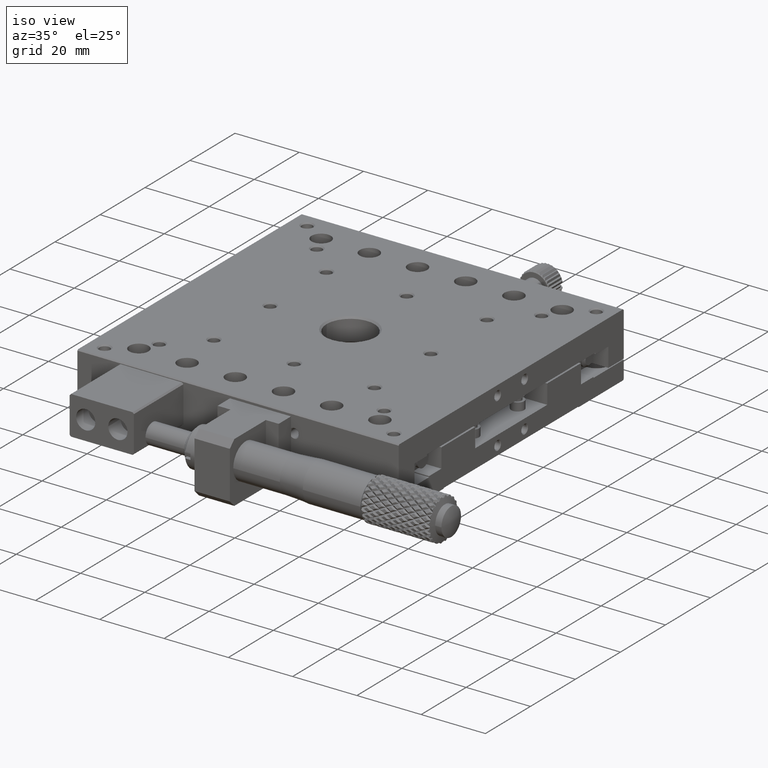
[diagram: clean part render]
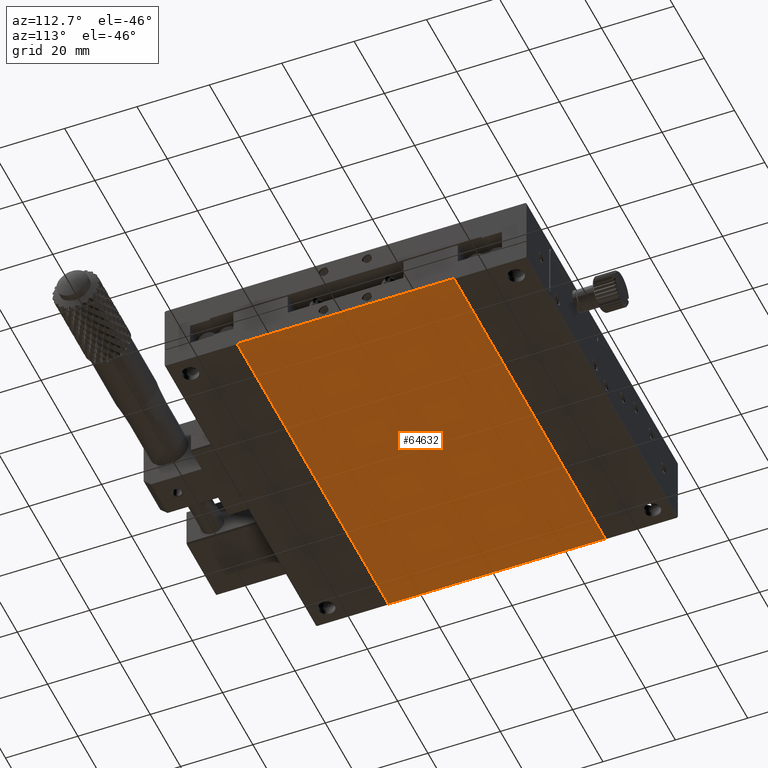
[diagram: tour spotlight — one face highlighted and labeled with its STEP entity id]
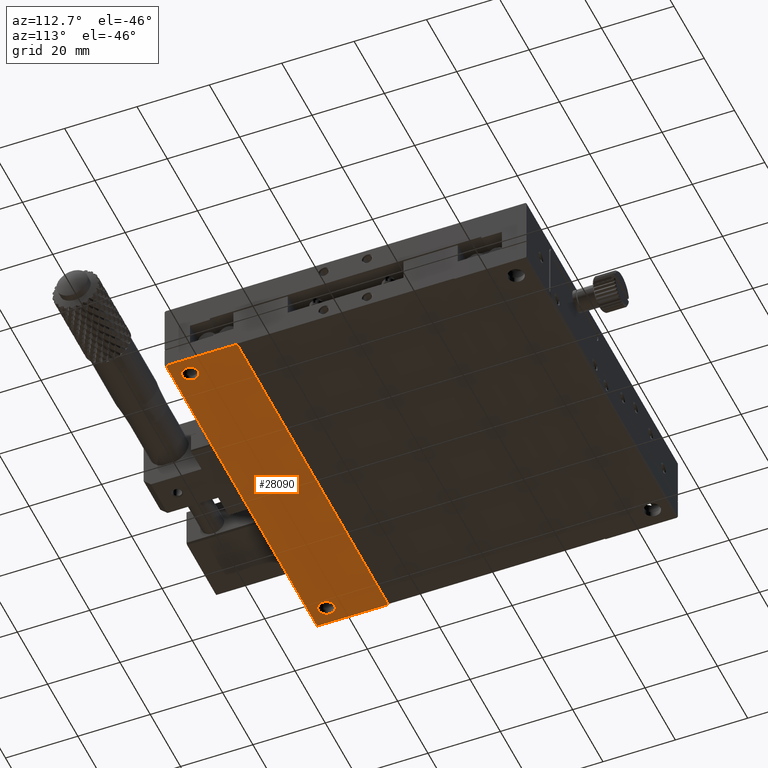
[diagram: tour spotlight — one face highlighted and labeled with its STEP entity id]
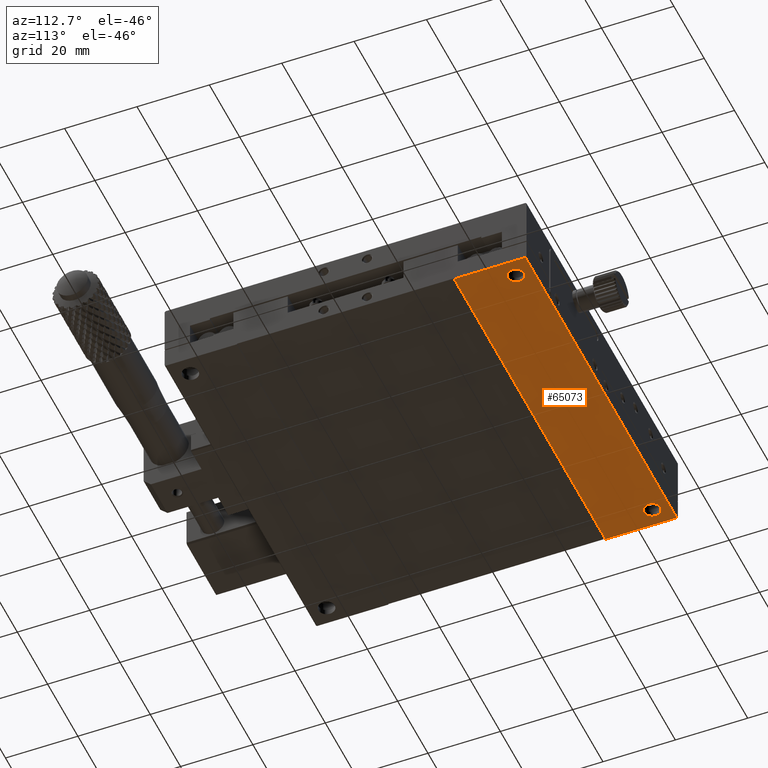
[diagram: tour spotlight — one face highlighted and labeled with its STEP entity id]
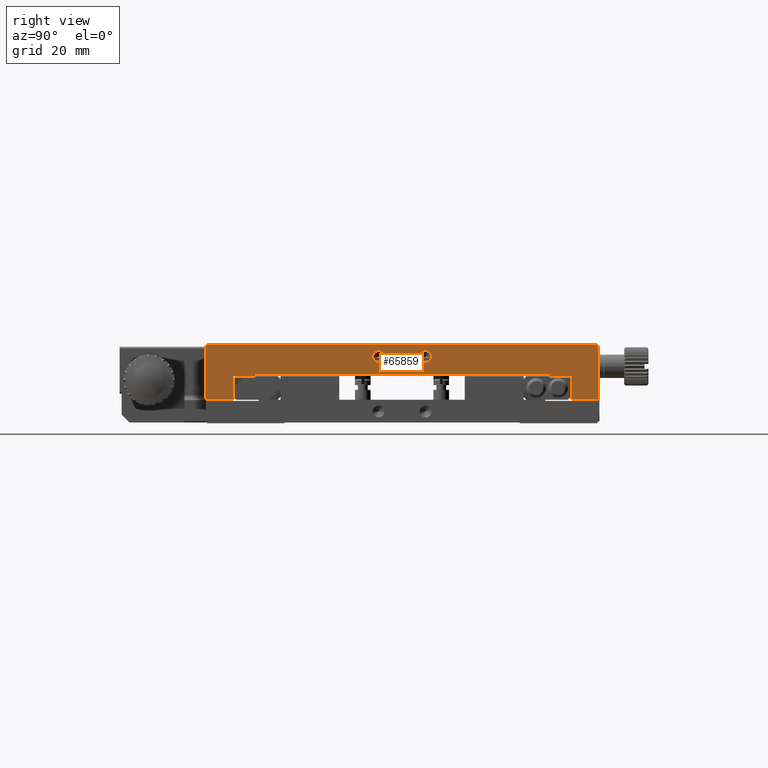
[diagram: tour spotlight — one face highlighted and labeled with its STEP entity id]
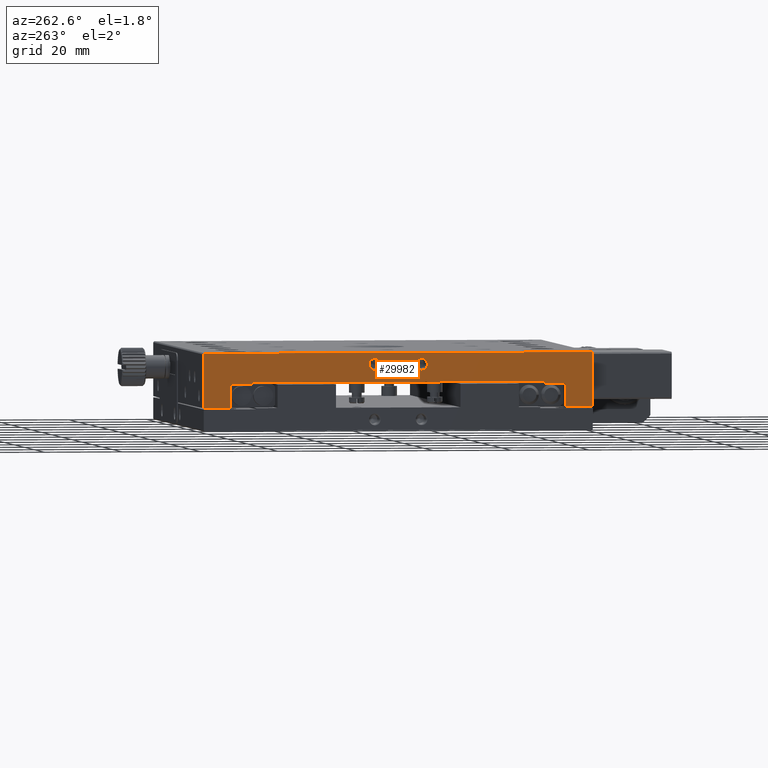
[diagram: tour spotlight — one face highlighted and labeled with its STEP entity id]
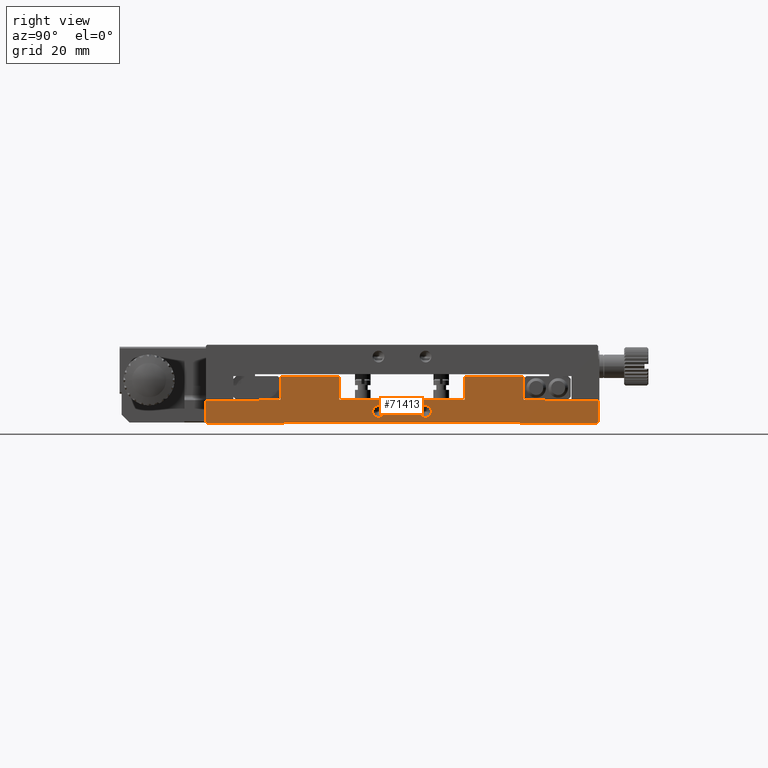
[diagram: tour spotlight — one face highlighted and labeled with its STEP entity id]
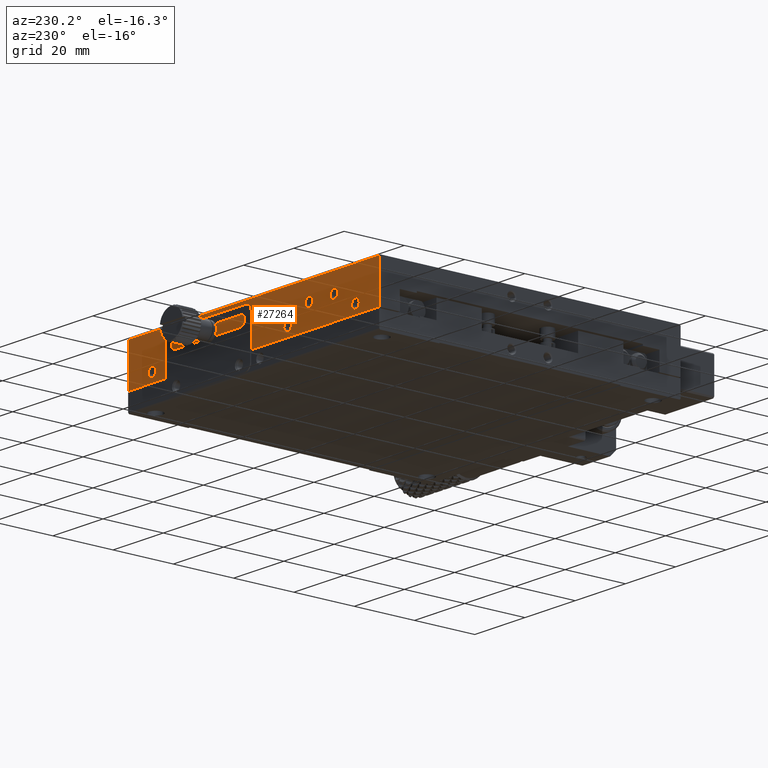
[diagram: tour spotlight — one face highlighted and labeled with its STEP entity id]
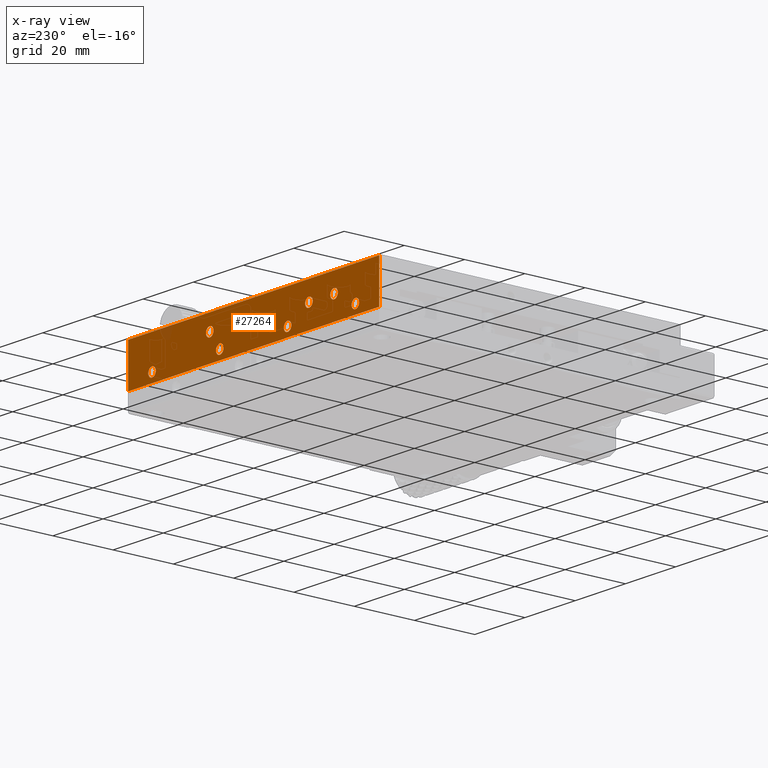
[diagram: x-ray of the same camera — body ghosted, this tour face saturated]
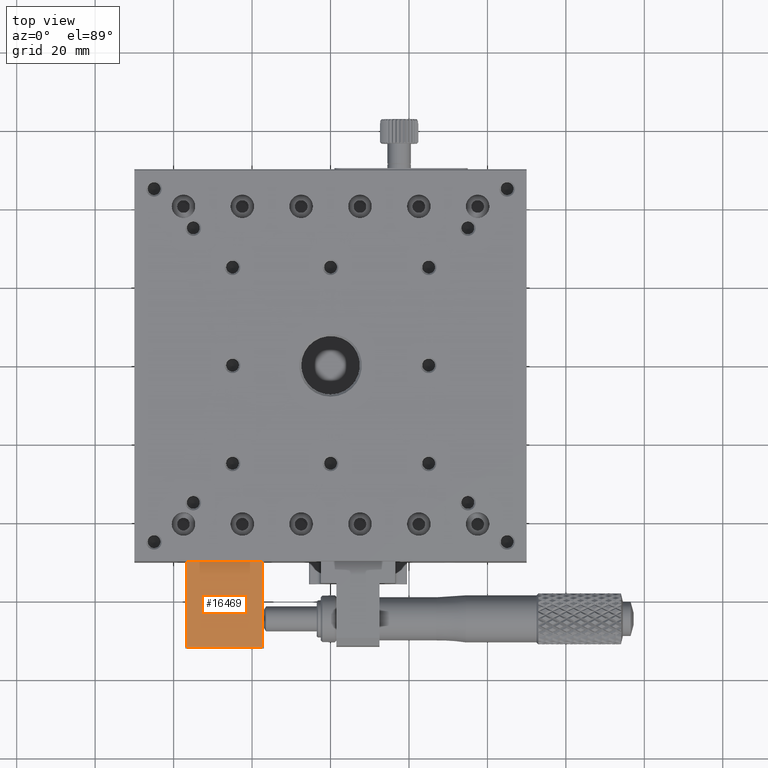
[diagram: tour spotlight — one face highlighted and labeled with its STEP entity id]
A machine part: a face-by-face anatomy tour. The part has 1914 B-rep faces; the first image is the clean iso view, then the 8 largest visible faces are spotlighted one at a time (largest first), each with its STEP entity span.

Face 1 — auxiliary view, entity #64632. In plain terms, the highlighted planar face has unit normal (0, 0, 1).
Definition (entity closure, byte-faithful):
#615 = DIRECTION ( 'NONE',  ( 0.000000000000000000, 0.000000000000000000, 1.000000000000000000 ) ) ;
#2254 = CARTESIAN_POINT ( 'NONE',  ( 50.00000000000000000, 30.00000000000000000, 0.2000000000000100586 ) ) ;
#2283 = CARTESIAN_POINT ( 'NONE',  ( 50.00000000000000000, -30.00000000000000000, 0.2000000000000100586 ) ) ;
#12983 = ORIENTED_EDGE ( 'NONE', *, *, #63159, .F. ) ;
#17845 = LINE ( 'NONE', #67636, #72172 ) ;
#19434 = PLANE ( 'NONE',  #39631 ) ;
#20335 = VERTEX_POINT ( 'NONE', #2283 ) ;
#22263 = DIRECTION ( 'NONE',  ( -1.000000000000000000, -0.000000000000000000, -0.000000000000000000 ) ) ;
#22317 = ORIENTED_EDGE ( 'NONE', *, *, #67013, .F. ) ;
#23434 = ORIENTED_EDGE ( 'NONE', *, *, #38902, .F. ) ;
#27266 = EDGE_CURVE ( 'NONE', #32711, #20335, #71735, .T. ) ;
#32711 = VERTEX_POINT ( 'NONE', #32755 ) ;
#32755 = CARTESIAN_POINT ( 'NONE',  ( -50.00000000000000000, -30.00000000000000000, 0.2000000000000100586 ) ) ;
#32946 = DIRECTION ( 'NONE',  ( 1.000000000000000000, 0.000000000000000000, 0.000000000000000000 ) ) ;
#34682 = VECTOR ( 'NONE', #32946, 1000.000000000000000 ) ;
#38902 = EDGE_CURVE ( 'NONE', #49349, #32711, #51254, .T. ) ;
#39139 = CARTESIAN_POINT ( 'NONE',  ( -50.00000000000000000, 30.00000000000000000, 0.2000000000000100586 ) ) ;
#39631 = AXIS2_PLACEMENT_3D ( 'NONE', #75388, #615, #70455 ) ;
#43786 = VERTEX_POINT ( 'NONE', #70072 ) ;
#45216 = CARTESIAN_POINT ( 'NONE',  ( 50.00000000000000000, -30.00000000000000000, 0.2000000000000100586 ) ) ;
#45563 = FACE_OUTER_BOUND ( 'NONE', #76580, .T. ) ;
#49349 = VERTEX_POINT ( 'NONE', #39139 ) ;
#51254 = LINE ( 'NONE', #76614, #53207 ) ;
#51436 = VECTOR ( 'NONE', #22263, 1000.000000000000000 ) ;
#53207 = VECTOR ( 'NONE', #70443, 1000.000000000000000 ) ;
#58182 = LINE ( 'NONE', #2254, #51436 ) ;
#62193 = ORIENTED_EDGE ( 'NONE', *, *, #27266, .F. ) ;
#63159 = EDGE_CURVE ( 'NONE', #20335, #43786, #17845, .T. ) ;
#64632 = ADVANCED_FACE ( 'NONE', ( #45563 ), #19434, .F. ) ;
#67013 = EDGE_CURVE ( 'NONE', #43786, #49349, #58182, .T. ) ;
#67636 = CARTESIAN_POINT ( 'NONE',  ( 50.00000000000000000, -30.00000000000000000, 0.2000000000000100586 ) ) ;
#69973 = DIRECTION ( 'NONE',  ( -0.000000000000000000, 1.000000000000000000, -0.000000000000000000 ) ) ;
#70072 = CARTESIAN_POINT ( 'NONE',  ( 50.00000000000000000, 30.00000000000000000, 0.2000000000000100586 ) ) ;
#70443 = DIRECTION ( 'NONE',  ( 0.000000000000000000, -1.000000000000000000, 0.000000000000000000 ) ) ;
#70455 = DIRECTION ( 'NONE',  ( 0.000000000000000000, -1.000000000000000000, 0.000000000000000000 ) ) ;
#71735 = LINE ( 'NONE', #45216, #34682 ) ;
#72172 = VECTOR ( 'NONE', #69973, 1000.000000000000000 ) ;
#75388 = CARTESIAN_POINT ( 'NONE',  ( 50.00000000000000000, -30.00000000000000000, 0.2000000000000100586 ) ) ;
#76580 = EDGE_LOOP ( 'NONE', ( #22317, #12983, #62193, #23434 ) ) ;
#76614 = CARTESIAN_POINT ( 'NONE',  ( -50.00000000000000000, -30.00000000000000000, 0.2000000000000100586 ) ) ;

Face 2 — auxiliary view, entity #28090. In plain terms, the highlighted planar face has unit normal (0, 0, 1).
Definition (entity closure, byte-faithful):
#253 = ORIENTED_EDGE ( 'NONE', *, *, #7248, .F. ) ;
#1083 = CARTESIAN_POINT ( 'NONE',  ( 50.00000000000000000, -30.00000000000000000, 1.908195823574487804E-14 ) ) ;
#2439 = VECTOR ( 'NONE', #45816, 1000.000000000000000 ) ;
#4007 = CARTESIAN_POINT ( 'NONE',  ( 50.00000000000000000, -49.70000000000000995, 1.908195823574487804E-14 ) ) ;
#5896 = DIRECTION ( 'NONE',  ( 0.000000000000000000, 0.000000000000000000, -1.000000000000000000 ) ) ;
#7248 = EDGE_CURVE ( 'NONE', #59699, #59699, #80215, .T. ) ;
#7793 = CARTESIAN_POINT ( 'NONE',  ( 45.00000000000000000, -45.00000000000000000, 0.000000000000000000 ) ) ;
#8239 = LINE ( 'NONE', #4007, #2439 ) ;
#8710 = CARTESIAN_POINT ( 'NONE',  ( 45.00000000000000000, -47.25000000000000000, 0.000000000000000000 ) ) ;
#9191 = AXIS2_PLACEMENT_3D ( 'NONE', #36907, #5896, #55734 ) ;
#9626 = DIRECTION ( 'NONE',  ( 0.000000000000000000, 0.000000000000000000, 1.000000000000000000 ) ) ;
#12056 = EDGE_LOOP ( 'NONE', ( #253 ) ) ;
#12190 = CARTESIAN_POINT ( 'NONE',  ( -50.00000000000000000, -49.70000000000000995, 2.428612866367529932E-14 ) ) ;
#12338 = DIRECTION ( 'NONE',  ( 0.000000000000000000, -1.000000000000000000, 0.000000000000000000 ) ) ;
#14358 = DIRECTION ( 'NONE',  ( 0.000000000000000000, -1.000000000000000000, 0.000000000000000000 ) ) ;
#15581 = CARTESIAN_POINT ( 'NONE',  ( -45.00000000000000711, -42.74999999999999289, 9.540979117872439019E-15 ) ) ;
#15733 = ORIENTED_EDGE ( 'NONE', *, *, #42551, .F. ) ;
#17001 = CIRCLE ( 'NONE', #9191, 2.250000000000001776 ) ;
#19731 = ORIENTED_EDGE ( 'NONE', *, *, #36356, .T. ) ;
#21164 = EDGE_CURVE ( 'NONE', #52743, #75369, #71276, .T. ) ;
#23043 = EDGE_CURVE ( 'NONE', #71486, #71486, #17001, .T. ) ;
#24594 = FACE_OUTER_BOUND ( 'NONE', #77773, .T. ) ;
#28090 = ADVANCED_FACE ( 'NONE', ( #24594, #40622, #53721 ), #43334, .F. ) ;
#28368 = ORIENTED_EDGE ( 'NONE', *, *, #52565, .F. ) ;
#29381 = CARTESIAN_POINT ( 'NONE',  ( 50.00000000000000000, -49.70000000000000995, 2.428612866367529932E-14 ) ) ;
#35981 = CARTESIAN_POINT ( 'NONE',  ( 50.00000000000000000, -30.00000000000000000, 1.908195823574487804E-14 ) ) ;
#36356 = EDGE_CURVE ( 'NONE', #48092, #52743, #57041, .T. ) ;
#36907 = CARTESIAN_POINT ( 'NONE',  ( -45.00000000000000711, -45.00000000000000000, 9.540979117872439019E-15 ) ) ;
#36952 = VECTOR ( 'NONE', #66733, 1000.000000000000000 ) ;
#37093 = AXIS2_PLACEMENT_3D ( 'NONE', #7793, #39212, #14358 ) ;
#39212 = DIRECTION ( 'NONE',  ( -0.000000000000000000, -0.000000000000000000, -1.000000000000000000 ) ) ;
#40622 = FACE_BOUND ( 'NONE', #68812, .T. ) ;
#40690 = VECTOR ( 'NONE', #76525, 1000.000000000000000 ) ;
#41030 = CARTESIAN_POINT ( 'NONE',  ( 50.00000000000000000, -49.70000000000000995, 1.908195823574487804E-14 ) ) ;
#42551 = EDGE_CURVE ( 'NONE', #78981, #75369, #8239, .T. ) ;
#43334 = PLANE ( 'NONE',  #55476 ) ;
#44775 = DIRECTION ( 'NONE',  ( 1.000000000000000000, -0.000000000000000000, 0.000000000000000000 ) ) ;
#45816 = DIRECTION ( 'NONE',  ( 1.000000000000000000, 0.000000000000000000, 0.000000000000000000 ) ) ;
#48092 = VERTEX_POINT ( 'NONE', #63857 ) ;
#52565 = EDGE_CURVE ( 'NONE', #48092, #78981, #57691, .T. ) ;
#52743 = VERTEX_POINT ( 'NONE', #35981 ) ;
#53092 = VECTOR ( 'NONE', #44775, 1000.000000000000000 ) ;
#53721 = FACE_BOUND ( 'NONE', #12056, .T. ) ;
#55476 = AXIS2_PLACEMENT_3D ( 'NONE', #41030, #9626, #12338 ) ;
#55734 = DIRECTION ( 'NONE',  ( 0.000000000000000000, 1.000000000000000000, 0.000000000000000000 ) ) ;
#57041 = LINE ( 'NONE', #1083, #53092 ) ;
#57691 = LINE ( 'NONE', #71175, #40690 ) ;
#59699 = VERTEX_POINT ( 'NONE', #8710 ) ;
#63857 = CARTESIAN_POINT ( 'NONE',  ( -50.00000000000000000, -30.00000000000000000, 1.908195823574487804E-14 ) ) ;
#66733 = DIRECTION ( 'NONE',  ( -0.000000000000000000, -1.000000000000000000, -0.000000000000000000 ) ) ;
#66779 = ORIENTED_EDGE ( 'NONE', *, *, #21164, .T. ) ;
#68812 = EDGE_LOOP ( 'NONE', ( #75432 ) ) ;
#71175 = CARTESIAN_POINT ( 'NONE',  ( -50.00000000000000000, 50.00000000000000000, 1.908195823574487804E-14 ) ) ;
#71276 = LINE ( 'NONE', #79038, #36952 ) ;
#71486 = VERTEX_POINT ( 'NONE', #15581 ) ;
#75369 = VERTEX_POINT ( 'NONE', #29381 ) ;
#75432 = ORIENTED_EDGE ( 'NONE', *, *, #23043, .F. ) ;
#76525 = DIRECTION ( 'NONE',  ( -0.000000000000000000, -1.000000000000000000, -0.000000000000000000 ) ) ;
#77773 = EDGE_LOOP ( 'NONE', ( #19731, #66779, #15733, #28368 ) ) ;
#78981 = VERTEX_POINT ( 'NONE', #12190 ) ;
#79038 = CARTESIAN_POINT ( 'NONE',  ( 50.00000000000000000, 50.00000000000000000, 1.908195823574487804E-14 ) ) ;
#80215 = CIRCLE ( 'NONE', #37093, 2.250000000000001776 ) ;

Face 3 — auxiliary view, entity #65073. In plain terms, the highlighted planar face has unit normal (0, 0, 1).
Definition (entity closure, byte-faithful):
#1770 = CARTESIAN_POINT ( 'NONE',  ( 50.00000000000000000, 49.69999999999999574, 1.908195823574487804E-14 ) ) ;
#3163 = VECTOR ( 'NONE', #60342, 1000.000000000000000 ) ;
#4231 = EDGE_LOOP ( 'NONE', ( #46420, #72128, #11992, #53456 ) ) ;
#5006 = EDGE_LOOP ( 'NONE', ( #75361 ) ) ;
#7470 = DIRECTION ( 'NONE',  ( -1.000000000000000000, -0.000000000000000000, -0.000000000000000000 ) ) ;
#11992 = ORIENTED_EDGE ( 'NONE', *, *, #62525, .T. ) ;
#12638 = CARTESIAN_POINT ( 'NONE',  ( 50.00000000000000000, 30.00000000000000355, 1.908195823574487804E-14 ) ) ;
#13111 = EDGE_CURVE ( 'NONE', #68271, #30638, #72227, .T. ) ;
#13521 = FACE_OUTER_BOUND ( 'NONE', #4231, .T. ) ;
#14922 = DIRECTION ( 'NONE',  ( -0.000000000000000000, -1.000000000000000000, -0.000000000000000000 ) ) ;
#18461 = DIRECTION ( 'NONE',  ( -0.000000000000000000, -0.000000000000000000, -1.000000000000000000 ) ) ;
#18825 = DIRECTION ( 'NONE',  ( 0.000000000000000000, 1.000000000000000000, 0.000000000000000000 ) ) ;
#21444 = LINE ( 'NONE', #58967, #55688 ) ;
#22751 = CIRCLE ( 'NONE', #70997, 2.250000000000001776 ) ;
#23044 = CIRCLE ( 'NONE', #45242, 2.250000000000001776 ) ;
#24222 = EDGE_CURVE ( 'NONE', #57353, #66191, #21444, .T. ) ;
#25104 = EDGE_CURVE ( 'NONE', #40015, #40015, #22751, .T. ) ;
#25903 = LINE ( 'NONE', #1770, #41995 ) ;
#26182 = FACE_BOUND ( 'NONE', #41445, .T. ) ;
#26690 = CARTESIAN_POINT ( 'NONE',  ( 50.00000000000000000, 30.00000000000000355, 1.908195823574487804E-14 ) ) ;
#28600 = CARTESIAN_POINT ( 'NONE',  ( 45.00000000000000000, 42.75000000000000000, 0.000000000000000000 ) ) ;
#30638 = VERTEX_POINT ( 'NONE', #76017 ) ;
#30737 = ORIENTED_EDGE ( 'NONE', *, *, #78505, .F. ) ;
#32276 = CARTESIAN_POINT ( 'NONE',  ( 50.00000000000000000, 30.00000000000000355, 1.908195823574487804E-14 ) ) ;
#32801 = DIRECTION ( 'NONE',  ( -1.000000000000000000, -0.000000000000000000, -0.000000000000000000 ) ) ;
#35442 = CARTESIAN_POINT ( 'NONE',  ( -50.00000000000000000, 50.00000000000000000, 1.908195823574487804E-14 ) ) ;
#40015 = VERTEX_POINT ( 'NONE', #28600 ) ;
#41445 = EDGE_LOOP ( 'NONE', ( #30737 ) ) ;
#41995 = VECTOR ( 'NONE', #32801, 1000.000000000000000 ) ;
#43746 = DIRECTION ( 'NONE',  ( 0.000000000000000000, -1.000000000000000000, 0.000000000000000000 ) ) ;
#44517 = PLANE ( 'NONE',  #70957 ) ;
#45242 = AXIS2_PLACEMENT_3D ( 'NONE', #49839, #74768, #18825 ) ;
#46420 = ORIENTED_EDGE ( 'NONE', *, *, #57162, .F. ) ;
#49369 = CARTESIAN_POINT ( 'NONE',  ( -50.00000000000000000, 49.69999999999999574, 1.821459649775647449E-14 ) ) ;
#49839 = CARTESIAN_POINT ( 'NONE',  ( -45.00000000000000711, 45.00000000000000711, 9.540979117872439019E-15 ) ) ;
#53456 = ORIENTED_EDGE ( 'NONE', *, *, #13111, .F. ) ;
#55688 = VECTOR ( 'NONE', #14922, 1000.000000000000000 ) ;
#56475 = LINE ( 'NONE', #26690, #73524 ) ;
#56781 = FACE_BOUND ( 'NONE', #5006, .T. ) ;
#56883 = CARTESIAN_POINT ( 'NONE',  ( -45.00000000000000711, 47.25000000000000711, 9.540979117872439019E-15 ) ) ;
#57162 = EDGE_CURVE ( 'NONE', #57353, #68271, #25903, .T. ) ;
#57353 = VERTEX_POINT ( 'NONE', #74401 ) ;
#58967 = CARTESIAN_POINT ( 'NONE',  ( 50.00000000000000000, 50.00000000000000000, 1.908195823574487804E-14 ) ) ;
#60342 = DIRECTION ( 'NONE',  ( -0.000000000000000000, -1.000000000000000000, -0.000000000000000000 ) ) ;
#62525 = EDGE_CURVE ( 'NONE', #66191, #30638, #56475, .T. ) ;
#65073 = ADVANCED_FACE ( 'NONE', ( #13521, #26182, #56781 ), #44517, .F. ) ;
#66191 = VERTEX_POINT ( 'NONE', #12638 ) ;
#68271 = VERTEX_POINT ( 'NONE', #49369 ) ;
#69871 = CARTESIAN_POINT ( 'NONE',  ( 45.00000000000000000, 45.00000000000000711, 0.000000000000000000 ) ) ;
#70352 = VERTEX_POINT ( 'NONE', #56883 ) ;
#70957 = AXIS2_PLACEMENT_3D ( 'NONE', #32276, #75993, #74783 ) ;
#70997 = AXIS2_PLACEMENT_3D ( 'NONE', #69871, #18461, #43746 ) ;
#72128 = ORIENTED_EDGE ( 'NONE', *, *, #24222, .T. ) ;
#72227 = LINE ( 'NONE', #35442, #3163 ) ;
#73524 = VECTOR ( 'NONE', #7470, 1000.000000000000000 ) ;
#74401 = CARTESIAN_POINT ( 'NONE',  ( 50.00000000000000000, 49.69999999999999574, 1.821459649775647449E-14 ) ) ;
#74768 = DIRECTION ( 'NONE',  ( 0.000000000000000000, 0.000000000000000000, -1.000000000000000000 ) ) ;
#74783 = DIRECTION ( 'NONE',  ( 0.000000000000000000, -1.000000000000000000, 0.000000000000000000 ) ) ;
#75361 = ORIENTED_EDGE ( 'NONE', *, *, #25104, .F. ) ;
#75993 = DIRECTION ( 'NONE',  ( 0.000000000000000000, 0.000000000000000000, 1.000000000000000000 ) ) ;
#76017 = CARTESIAN_POINT ( 'NONE',  ( -50.00000000000000000, 30.00000000000000355, 1.908195823574487804E-14 ) ) ;
#78505 = EDGE_CURVE ( 'NONE', #70352, #70352, #23044, .T. ) ;

Face 4 — right view, entity #65859. In plain terms, the highlighted planar face has unit normal (1, 0, 0).
Definition (entity closure, byte-faithful):
#497 = DIRECTION ( 'NONE',  ( 0.000000000000000000, 0.000000000000000000, -1.000000000000000000 ) ) ;
#834 = VERTEX_POINT ( 'NONE', #38372 ) ;
#1812 = ORIENTED_EDGE ( 'NONE', *, *, #9257, .F. ) ;
#3115 = ORIENTED_EDGE ( 'NONE', *, *, #14138, .T. ) ;
#3857 = CARTESIAN_POINT ( 'NONE',  ( 50.00000000000000000, -5.999999999999998224, 17.00000000000000000 ) ) ;
#4109 = VERTEX_POINT ( 'NONE', #7855 ) ;
#4661 = CARTESIAN_POINT ( 'NONE',  ( 50.00000000000000000, 4.499999999995909938, 17.00000000000000000 ) ) ;
#5046 = CARTESIAN_POINT ( 'NONE',  ( 50.00000000000000000, 6.000000000000005329, 17.00000000000000000 ) ) ;
#5072 = CARTESIAN_POINT ( 'NONE',  ( 50.00000000000000000, 50.00000000000000000, 12.00000000000000000 ) ) ;
#5410 = ORIENTED_EDGE ( 'NONE', *, *, #48598, .T. ) ;
#5915 = VERTEX_POINT ( 'NONE', #17989 ) ;
#5930 = ORIENTED_EDGE ( 'NONE', *, *, #6644, .F. ) ;
#5936 = EDGE_LOOP ( 'NONE', ( #6796 ) ) ;
#6644 = EDGE_CURVE ( 'NONE', #62362, #58034, #27372, .T. ) ;
#6796 = ORIENTED_EDGE ( 'NONE', *, *, #66568, .T. ) ;
#7855 = CARTESIAN_POINT ( 'NONE',  ( 50.00000000000000000, -43.00000000000000000, 12.00000000000000000 ) ) ;
#9075 = CARTESIAN_POINT ( 'NONE',  ( 50.00000000000000000, -49.70000000000000995, 20.00000000000000000 ) ) ;
#9257 = EDGE_CURVE ( 'NONE', #58034, #73736, #13434, .T. ) ;
#10014 = LINE ( 'NONE', #71681, #34375 ) ;
#11254 = ORIENTED_EDGE ( 'NONE', *, *, #45133, .T. ) ;
#11518 = FACE_BOUND ( 'NONE', #5936, .T. ) ;
#13086 = LINE ( 'NONE', #37936, #40082 ) ;
#13420 = VECTOR ( 'NONE', #67746, 1000.000000000000114 ) ;
#13434 = LINE ( 'NONE', #25279, #13420 ) ;
#14138 = EDGE_CURVE ( 'NONE', #16045, #73736, #33877, .T. ) ;
#16045 = VERTEX_POINT ( 'NONE', #23225 ) ;
#16991 = ORIENTED_EDGE ( 'NONE', *, *, #59099, .T. ) ;
#17989 = CARTESIAN_POINT ( 'NONE',  ( 50.00000000000000000, 43.19999999999999574, 6.000000000000000000 ) ) ;
#18134 = DIRECTION ( 'NONE',  ( -1.000000000000000000, -0.000000000000000000, -0.000000000000000000 ) ) ;
#18143 = CARTESIAN_POINT ( 'NONE',  ( 50.00000000000000000, 43.19999999999999574, 12.00000000000000000 ) ) ;
#19213 = EDGE_CURVE ( 'NONE', #834, #834, #21348, .T. ) ;
#19488 = LINE ( 'NONE', #32536, #47142 ) ;
#20679 = DIRECTION ( 'NONE',  ( -0.000000000000000000, 1.000000000000000000, -0.000000000000000000 ) ) ;
#21253 = EDGE_CURVE ( 'NONE', #45659, #51975, #10014, .T. ) ;
#21348 = CIRCLE ( 'NONE', #53890, 1.500000000061389782 ) ;
#22441 = DIRECTION ( 'NONE',  ( -0.000000000000000000, -0.000000000000000000, 1.000000000000000000 ) ) ;
#23225 = CARTESIAN_POINT ( 'NONE',  ( 50.00000000000000000, 50.00000000000000000, 6.000000000000000000 ) ) ;
#23431 = VECTOR ( 'NONE', #20679, 1000.000000000000000 ) ;
#24247 = VERTEX_POINT ( 'NONE', #39364 ) ;
#24649 = CARTESIAN_POINT ( 'NONE',  ( 50.00000000000000000, 43.19999999999999574, 20.00000000000000000 ) ) ;
#25279 = CARTESIAN_POINT ( 'NONE',  ( 50.00000000000005684, 50.00000000000000000, 19.69999999999998863 ) ) ;
#26303 = CARTESIAN_POINT ( 'NONE',  ( 50.00000000000002132, 50.00000000000000000, 19.69999999999998863 ) ) ;
#26461 = CARTESIAN_POINT ( 'NONE',  ( 50.00000000000000000, -37.50000000000000711, 12.00000000000000000 ) ) ;
#27372 = LINE ( 'NONE', #40366, #34977 ) ;
#27607 = DIRECTION ( 'NONE',  ( -0.000000000000000000, 1.000000000000000000, -0.000000000000000000 ) ) ;
#27731 = EDGE_CURVE ( 'NONE', #71443, #62362, #77703, .T. ) ;
#28053 = CARTESIAN_POINT ( 'NONE',  ( 50.00000000000000000, -43.00000000000000000, 20.00000000000000000 ) ) ;
#29219 = ORIENTED_EDGE ( 'NONE', *, *, #21253, .T. ) ;
#29541 = ORIENTED_EDGE ( 'NONE', *, *, #38168, .T. ) ;
#30912 = DIRECTION ( 'NONE',  ( -0.000000000000000000, -0.000000000000000000, 1.000000000000000000 ) ) ;
#30961 = LINE ( 'NONE', #55878, #32955 ) ;
#31149 = LINE ( 'NONE', #24649, #46684 ) ;
#31191 = LINE ( 'NONE', #5072, #37719 ) ;
#32536 = CARTESIAN_POINT ( 'NONE',  ( 50.00000000000000000, 37.50000000000000711, 12.50000000000000000 ) ) ;
#32770 = VECTOR ( 'NONE', #65282, 1000.000000000000000 ) ;
#32955 = VECTOR ( 'NONE', #70561, 1000.000000000000000 ) ;
#33877 = LINE ( 'NONE', #58767, #34508 ) ;
#34375 = VECTOR ( 'NONE', #27607, 1000.000000000000000 ) ;
#34508 = VECTOR ( 'NONE', #22441, 1000.000000000000000 ) ;
#34900 = DIRECTION ( 'NONE',  ( -1.000000000000000000, -0.000000000000000000, -0.000000000000000000 ) ) ;
#34977 = VECTOR ( 'NONE', #47318, 1000.000000000000000 ) ;
#37284 = EDGE_CURVE ( 'NONE', #4109, #78183, #13086, .T. ) ;
#37488 = CARTESIAN_POINT ( 'NONE',  ( 50.00000000000000000, 50.00000000000000000, 12.50000000000000000 ) ) ;
#37683 = CARTESIAN_POINT ( 'NONE',  ( 50.00000000000000000, -49.69999999999999574, 20.00000000000000355 ) ) ;
#37719 = VECTOR ( 'NONE', #47970, 1000.000000000000000 ) ;
#37936 = CARTESIAN_POINT ( 'NONE',  ( 50.00000000000000000, 50.00000000000000000, 12.00000000000000000 ) ) ;
#38092 = EDGE_LOOP ( 'NONE', ( #11254, #29541, #5410, #3115, #1812, #5930, #58226, #16991, #29219, #42590, #39433, #51722, #63778, #51144 ) ) ;
#38168 = EDGE_CURVE ( 'NONE', #62460, #5915, #31149, .T. ) ;
#38372 = CARTESIAN_POINT ( 'NONE',  ( 50.00000000000000000, -7.500000000061388228, 17.00000000000000000 ) ) ;
#39364 = CARTESIAN_POINT ( 'NONE',  ( 50.00000000000000000, 37.50000000000000711, 12.00000000000000000 ) ) ;
#39433 = ORIENTED_EDGE ( 'NONE', *, *, #37284, .T. ) ;
#40082 = VECTOR ( 'NONE', #62863, 1000.000000000000000 ) ;
#40348 = CARTESIAN_POINT ( 'NONE',  ( 50.00000000000000000, -37.50000000000000711, 12.00000000000000000 ) ) ;
#40366 = CARTESIAN_POINT ( 'NONE',  ( 50.00000000000000000, 49.69999999999999574, 20.00000000000000000 ) ) ;
#42178 = ORIENTED_EDGE ( 'NONE', *, *, #19213, .T. ) ;
#42590 = ORIENTED_EDGE ( 'NONE', *, *, #52360, .T. ) ;
#44892 = EDGE_LOOP ( 'NONE', ( #42178 ) ) ;
#45035 = EDGE_CURVE ( 'NONE', #57274, #74162, #45583, .T. ) ;
#45133 = EDGE_CURVE ( 'NONE', #24247, #62460, #31191, .T. ) ;
#45583 = LINE ( 'NONE', #37488, #23431 ) ;
#45659 = VERTEX_POINT ( 'NONE', #62920 ) ;
#45716 = LINE ( 'NONE', #40348, #32770 ) ;
#46023 = LINE ( 'NONE', #28053, #75869 ) ;
#46684 = VECTOR ( 'NONE', #497, 1000.000000000000000 ) ;
#47142 = VECTOR ( 'NONE', #30912, 1000.000000000000000 ) ;
#47318 = DIRECTION ( 'NONE',  ( -0.000000000000000000, 1.000000000000000000, -0.000000000000000000 ) ) ;
#47970 = DIRECTION ( 'NONE',  ( -0.000000000000000000, 1.000000000000000000, -0.000000000000000000 ) ) ;
#48598 = EDGE_CURVE ( 'NONE', #5915, #16045, #55382, .T. ) ;
#49394 = EDGE_CURVE ( 'NONE', #57274, #78183, #45716, .T. ) ;
#49487 = DIRECTION ( 'NONE',  ( 0.000000000000000000, -1.000000000000000000, 0.000000000000000000 ) ) ;
#49539 = EDGE_CURVE ( 'NONE', #24247, #74162, #19488, .T. ) ;
#51144 = ORIENTED_EDGE ( 'NONE', *, *, #49539, .F. ) ;
#51552 = DIRECTION ( 'NONE',  ( -0.000000000000000000, 0.7071067811865441310, 0.7071067811865510144 ) ) ;
#51722 = ORIENTED_EDGE ( 'NONE', *, *, #49394, .F. ) ;
#51975 = VERTEX_POINT ( 'NONE', #53933 ) ;
#52360 = EDGE_CURVE ( 'NONE', #51975, #4109, #46023, .T. ) ;
#53284 = VERTEX_POINT ( 'NONE', #4661 ) ;
#53890 = AXIS2_PLACEMENT_3D ( 'NONE', #3857, #34900, #73667 ) ;
#53933 = CARTESIAN_POINT ( 'NONE',  ( 50.00000000000000000, -43.00000000000000000, 6.000000000000000000 ) ) ;
#54525 = CARTESIAN_POINT ( 'NONE',  ( 50.00000000000000000, -50.00000000000000000, 19.69999999999999218 ) ) ;
#55203 = CARTESIAN_POINT ( 'NONE',  ( 50.00000000000000000, -37.50000000000000711, 12.50000000000000000 ) ) ;
#55382 = LINE ( 'NONE', #79132, #56193 ) ;
#55878 = CARTESIAN_POINT ( 'NONE',  ( 50.00000000000000000, -50.00000000000000000, 20.00000000000000000 ) ) ;
#56193 = VECTOR ( 'NONE', #72569, 1000.000000000000000 ) ;
#56668 = CIRCLE ( 'NONE', #59220, 1.500000000004095391 ) ;
#57274 = VERTEX_POINT ( 'NONE', #55203 ) ;
#58034 = VERTEX_POINT ( 'NONE', #77305 ) ;
#58226 = ORIENTED_EDGE ( 'NONE', *, *, #27731, .F. ) ;
#58767 = CARTESIAN_POINT ( 'NONE',  ( 50.00000000000000000, 50.00000000000000000, 20.00000000000000000 ) ) ;
#59052 = DIRECTION ( 'NONE',  ( -0.000000000000000000, -0.000000000000000000, 1.000000000000000000 ) ) ;
#59099 = EDGE_CURVE ( 'NONE', #71443, #45659, #30961, .T. ) ;
#59220 = AXIS2_PLACEMENT_3D ( 'NONE', #5046, #18134, #72852 ) ;
#61777 = AXIS2_PLACEMENT_3D ( 'NONE', #78940, #67840, #49487 ) ;
#62362 = VERTEX_POINT ( 'NONE', #37683 ) ;
#62460 = VERTEX_POINT ( 'NONE', #18143 ) ;
#62863 = DIRECTION ( 'NONE',  ( -0.000000000000000000, 1.000000000000000000, -0.000000000000000000 ) ) ;
#62920 = CARTESIAN_POINT ( 'NONE',  ( 50.00000000000000000, -50.00000000000000000, 6.000000000000000000 ) ) ;
#63778 = ORIENTED_EDGE ( 'NONE', *, *, #45035, .T. ) ;
#65282 = DIRECTION ( 'NONE',  ( 0.000000000000000000, 0.000000000000000000, -1.000000000000000000 ) ) ;
#65859 = ADVANCED_FACE ( 'NONE', ( #67459, #11518, #73588 ), #80561, .T. ) ;
#66568 = EDGE_CURVE ( 'NONE', #53284, #53284, #56668, .T. ) ;
#67459 = FACE_OUTER_BOUND ( 'NONE', #38092, .T. ) ;
#67746 = DIRECTION ( 'NONE',  ( -0.000000000000000000, 0.7071067811865474617, -0.7071067811865474617 ) ) ;
#67840 = DIRECTION ( 'NONE',  ( 1.000000000000000000, 0.000000000000000000, 0.000000000000000000 ) ) ;
#70561 = DIRECTION ( 'NONE',  ( 0.000000000000000000, 0.000000000000000000, -1.000000000000000000 ) ) ;
#71443 = VERTEX_POINT ( 'NONE', #54525 ) ;
#71681 = CARTESIAN_POINT ( 'NONE',  ( 50.00000000000000000, 50.00000000000000000, 6.000000000000000000 ) ) ;
#72569 = DIRECTION ( 'NONE',  ( -0.000000000000000000, 1.000000000000000000, -0.000000000000000000 ) ) ;
#72852 = DIRECTION ( 'NONE',  ( 0.000000000000000000, -1.000000000000000000, 0.000000000000000000 ) ) ;
#73588 = FACE_BOUND ( 'NONE', #44892, .T. ) ;
#73667 = DIRECTION ( 'NONE',  ( 0.000000000000000000, -1.000000000000000000, 0.000000000000000000 ) ) ;
#73736 = VERTEX_POINT ( 'NONE', #26303 ) ;
#74162 = VERTEX_POINT ( 'NONE', #77309 ) ;
#75869 = VECTOR ( 'NONE', #59052, 1000.000000000000000 ) ;
#77305 = CARTESIAN_POINT ( 'NONE',  ( 50.00000000000002132, 49.69999999999999574, 20.00000000000000000 ) ) ;
#77309 = CARTESIAN_POINT ( 'NONE',  ( 50.00000000000000000, 37.50000000000000711, 12.50000000000000000 ) ) ;
#77703 = LINE ( 'NONE', #9075, #80341 ) ;
#78183 = VERTEX_POINT ( 'NONE', #26461 ) ;
#78940 = CARTESIAN_POINT ( 'NONE',  ( 50.00000000000000000, 50.00000000000000000, 20.00000000000000000 ) ) ;
#79132 = CARTESIAN_POINT ( 'NONE',  ( 50.00000000000000000, 50.00000000000000000, 6.000000000000000000 ) ) ;
#80341 = VECTOR ( 'NONE', #51552, 999.9999999999998863 ) ;
#80561 = PLANE ( 'NONE',  #61777 ) ;

Face 5 — auxiliary view, entity #29982. In plain terms, the highlighted planar face has unit normal (1, 0, 0).
Definition (entity closure, byte-faithful):
#243 = VERTEX_POINT ( 'NONE', #17110 ) ;
#1759 = LINE ( 'NONE', #38900, #31660 ) ;
#1942 = DIRECTION ( 'NONE',  ( -1.000000000000000000, 0.000000000000000000, 0.000000000000000000 ) ) ;
#2604 = DIRECTION ( 'NONE',  ( -0.000000000000000000, -0.000000000000000000, 1.000000000000000000 ) ) ;
#3840 = VERTEX_POINT ( 'NONE', #48932 ) ;
#4387 = LINE ( 'NONE', #30497, #44219 ) ;
#4949 = DIRECTION ( 'NONE',  ( 0.000000000000000000, 0.000000000000000000, -1.000000000000000000 ) ) ;
#5329 = ORIENTED_EDGE ( 'NONE', *, *, #9554, .F. ) ;
#5336 = LINE ( 'NONE', #11496, #73745 ) ;
#5421 = ORIENTED_EDGE ( 'NONE', *, *, #49454, .F. ) ;
#5517 = EDGE_CURVE ( 'NONE', #243, #54540, #4387, .T. ) ;
#5523 = CARTESIAN_POINT ( 'NONE',  ( -50.00000000000000000, -43.00000000000000000, 6.000000000000000000 ) ) ;
#6453 = EDGE_CURVE ( 'NONE', #40776, #76900, #77280, .T. ) ;
#7052 = EDGE_CURVE ( 'NONE', #39459, #40776, #19019, .T. ) ;
#7407 = CARTESIAN_POINT ( 'NONE',  ( -50.00000000000000000, 50.00000000000000000, 6.000000000000000000 ) ) ;
#9070 = FACE_OUTER_BOUND ( 'NONE', #52247, .T. ) ;
#9554 = EDGE_CURVE ( 'NONE', #70029, #45334, #58712, .T. ) ;
#9560 = DIRECTION ( 'NONE',  ( 0.000000000000000000, -0.7071067811865441310, 0.7071067811865510144 ) ) ;
#10383 = VERTEX_POINT ( 'NONE', #7407 ) ;
#11496 = CARTESIAN_POINT ( 'NONE',  ( -50.00000000000000000, -37.50000000000000711, 12.00000000000000000 ) ) ;
#11678 = EDGE_CURVE ( 'NONE', #66879, #40080, #33641, .T. ) ;
#11793 = VERTEX_POINT ( 'NONE', #36648 ) ;
#11979 = ORIENTED_EDGE ( 'NONE', *, *, #19060, .F. ) ;
#13188 = DIRECTION ( 'NONE',  ( 0.000000000000000000, -0.7071067811865441310, -0.7071067811865510144 ) ) ;
#14051 = CARTESIAN_POINT ( 'NONE',  ( -50.00000000000000000, -50.00000000000000000, 6.000000000000000000 ) ) ;
#14803 = CIRCLE ( 'NONE', #42125, 1.499999999924513050 ) ;
#15366 = CARTESIAN_POINT ( 'NONE',  ( -50.00000000000000000, -50.00000000000000000, 19.69999999999999218 ) ) ;
#15489 = DIRECTION ( 'NONE',  ( 0.000000000000000000, 0.000000000000000000, -1.000000000000000000 ) ) ;
#16381 = LINE ( 'NONE', #79267, #20431 ) ;
#16690 = CARTESIAN_POINT ( 'NONE',  ( -50.00000000000000000, 50.00000000000000000, 20.00000000000000000 ) ) ;
#17110 = CARTESIAN_POINT ( 'NONE',  ( -50.00000000000000000, -37.50000000000000711, 12.50000000000000000 ) ) ;
#19019 = LINE ( 'NONE', #24748, #77622 ) ;
#19060 = EDGE_CURVE ( 'NONE', #76900, #80878, #49267, .T. ) ;
#19420 = ORIENTED_EDGE ( 'NONE', *, *, #11678, .F. ) ;
#19911 = EDGE_CURVE ( 'NONE', #80878, #66879, #1759, .T. ) ;
#20010 = ORIENTED_EDGE ( 'NONE', *, *, #61912, .F. ) ;
#20431 = VECTOR ( 'NONE', #73914, 1000.000000000000000 ) ;
#20519 = ORIENTED_EDGE ( 'NONE', *, *, #74397, .F. ) ;
#21593 = CARTESIAN_POINT ( 'NONE',  ( -50.00000000000000000, 43.19999999999999574, 20.00000000000000000 ) ) ;
#21836 = LINE ( 'NONE', #59751, #30690 ) ;
#24748 = CARTESIAN_POINT ( 'NONE',  ( -50.00000000000000000, 49.69999999999999574, 20.00000000000000000 ) ) ;
#24921 = VERTEX_POINT ( 'NONE', #34426 ) ;
#25526 = ORIENTED_EDGE ( 'NONE', *, *, #74356, .F. ) ;
#25618 = ORIENTED_EDGE ( 'NONE', *, *, #55314, .F. ) ;
#26968 = EDGE_CURVE ( 'NONE', #3840, #39459, #21836, .T. ) ;
#27334 = ORIENTED_EDGE ( 'NONE', *, *, #19911, .F. ) ;
#27425 = EDGE_LOOP ( 'NONE', ( #36037 ) ) ;
#27862 = PLANE ( 'NONE',  #42510 ) ;
#28138 = CARTESIAN_POINT ( 'NONE',  ( -50.00000000000000000, 43.19999999999999574, 12.00000000000000000 ) ) ;
#29982 = ADVANCED_FACE ( 'NONE', ( #9070, #33967, #58858 ), #27862, .F. ) ;
#30253 = DIRECTION ( 'NONE',  ( -0.000000000000000000, -0.000000000000000000, 1.000000000000000000 ) ) ;
#30497 = CARTESIAN_POINT ( 'NONE',  ( -50.00000000000000000, 50.00000000000000000, 12.50000000000000000 ) ) ;
#30690 = VECTOR ( 'NONE', #9560, 999.9999999999998863 ) ;
#31660 = VECTOR ( 'NONE', #65440, 1000.000000000000000 ) ;
#31972 = VECTOR ( 'NONE', #33893, 1000.000000000000000 ) ;
#32123 = ORIENTED_EDGE ( 'NONE', *, *, #59516, .F. ) ;
#32348 = VECTOR ( 'NONE', #13188, 999.9999999999998863 ) ;
#32404 = CARTESIAN_POINT ( 'NONE',  ( -50.00000000000000000, 43.19999999999999574, 6.000000000000000000 ) ) ;
#32437 = ORIENTED_EDGE ( 'NONE', *, *, #5517, .F. ) ;
#32569 = DIRECTION ( 'NONE',  ( 0.000000000000000000, 1.000000000000000000, 0.000000000000000000 ) ) ;
#33156 = CARTESIAN_POINT ( 'NONE',  ( -50.00000000000000000, -49.70000000000000995, 20.00000000000000000 ) ) ;
#33641 = LINE ( 'NONE', #58536, #44819 ) ;
#33893 = DIRECTION ( 'NONE',  ( -0.000000000000000000, 1.000000000000000000, -0.000000000000000000 ) ) ;
#33967 = FACE_BOUND ( 'NONE', #27425, .T. ) ;
#34082 = VECTOR ( 'NONE', #53834, 1000.000000000000000 ) ;
#34426 = CARTESIAN_POINT ( 'NONE',  ( -50.00000000000000000, 37.50000000000000711, 12.00000000000000000 ) ) ;
#34493 = CARTESIAN_POINT ( 'NONE',  ( -49.99999999996589395, -4.500000000075485396, 17.00000000000000000 ) ) ;
#35182 = LINE ( 'NONE', #48240, #57768 ) ;
#35555 = VECTOR ( 'NONE', #39304, 1000.000000000000000 ) ;
#36037 = ORIENTED_EDGE ( 'NONE', *, *, #36928, .F. ) ;
#36648 = CARTESIAN_POINT ( 'NONE',  ( -49.99999999990905053, 7.500000000038656189, 17.00000000000000000 ) ) ;
#36928 = EDGE_CURVE ( 'NONE', #11793, #11793, #76624, .T. ) ;
#37113 = DIRECTION ( 'NONE',  ( 0.000000000000000000, 1.000000000000000000, 0.000000000000000000 ) ) ;
#38900 = CARTESIAN_POINT ( 'NONE',  ( -50.00000000000000000, 50.00000000000000000, 6.000000000000000000 ) ) ;
#39304 = DIRECTION ( 'NONE',  ( -0.000000000000000000, 1.000000000000000000, -0.000000000000000000 ) ) ;
#39459 = VERTEX_POINT ( 'NONE', #69792 ) ;
#39674 = ORIENTED_EDGE ( 'NONE', *, *, #7052, .F. ) ;
#40080 = VERTEX_POINT ( 'NONE', #51490 ) ;
#40776 = VERTEX_POINT ( 'NONE', #77656 ) ;
#41934 = DIRECTION ( 'NONE',  ( -0.000000000000000000, 1.000000000000000000, -0.000000000000000000 ) ) ;
#42125 = AXIS2_PLACEMENT_3D ( 'NONE', #80483, #73104, #37113 ) ;
#42510 = AXIS2_PLACEMENT_3D ( 'NONE', #52759, #46640, #77696 ) ;
#43108 = DIRECTION ( 'NONE',  ( 0.000000000000000000, 0.000000000000000000, -1.000000000000000000 ) ) ;
#44219 = VECTOR ( 'NONE', #41934, 1000.000000000000000 ) ;
#44819 = VECTOR ( 'NONE', #2604, 1000.000000000000000 ) ;
#45334 = VERTEX_POINT ( 'NONE', #32404 ) ;
#45652 = CARTESIAN_POINT ( 'NONE',  ( -49.99999999990905053, 6.000000000000005329, 17.00000000000000000 ) ) ;
#46110 = VECTOR ( 'NONE', #43108, 1000.000000000000000 ) ;
#46640 = DIRECTION ( 'NONE',  ( 1.000000000000000000, 0.000000000000000000, 0.000000000000000000 ) ) ;
#48240 = CARTESIAN_POINT ( 'NONE',  ( -50.00000000000000000, 37.50000000000000711, 12.50000000000000000 ) ) ;
#48932 = CARTESIAN_POINT ( 'NONE',  ( -50.00000000000000000, 50.00000000000000000, 19.69999999999998863 ) ) ;
#49215 = CARTESIAN_POINT ( 'NONE',  ( -50.00000000000000000, -37.50000000000000711, 12.00000000000000000 ) ) ;
#49267 = LINE ( 'NONE', #62691, #46110 ) ;
#49454 = EDGE_CURVE ( 'NONE', #10383, #3840, #60326, .T. ) ;
#51125 = ORIENTED_EDGE ( 'NONE', *, *, #26968, .F. ) ;
#51490 = CARTESIAN_POINT ( 'NONE',  ( -50.00000000000000000, -43.00000000000000000, 12.00000000000000000 ) ) ;
#51673 = VERTEX_POINT ( 'NONE', #49215 ) ;
#51880 = LINE ( 'NONE', #57577, #31972 ) ;
#52247 = EDGE_LOOP ( 'NONE', ( #5329, #55807, #25618, #32437, #25526, #32123, #19420, #27334, #11979, #79703, #39674, #51125, #5421, #20519 ) ) ;
#52759 = CARTESIAN_POINT ( 'NONE',  ( -50.00000000000000000, 50.00000000000000000, 20.00000000000000000 ) ) ;
#53834 = DIRECTION ( 'NONE',  ( -0.000000000000000000, -0.000000000000000000, 1.000000000000000000 ) ) ;
#54540 = VERTEX_POINT ( 'NONE', #75508 ) ;
#55314 = EDGE_CURVE ( 'NONE', #54540, #24921, #35182, .T. ) ;
#55807 = ORIENTED_EDGE ( 'NONE', *, *, #76402, .F. ) ;
#56717 = EDGE_LOOP ( 'NONE', ( #20010 ) ) ;
#57577 = CARTESIAN_POINT ( 'NONE',  ( -50.00000000000000000, 50.00000000000000000, 6.000000000000000000 ) ) ;
#57768 = VECTOR ( 'NONE', #4949, 1000.000000000000000 ) ;
#58536 = CARTESIAN_POINT ( 'NONE',  ( -50.00000000000000000, -43.00000000000000000, 20.00000000000000000 ) ) ;
#58712 = LINE ( 'NONE', #21593, #79961 ) ;
#58858 = FACE_BOUND ( 'NONE', #56717, .T. ) ;
#59516 = EDGE_CURVE ( 'NONE', #40080, #51673, #76538, .T. ) ;
#59751 = CARTESIAN_POINT ( 'NONE',  ( -50.00000000000000000, 50.00000000000000000, 19.69999999999998508 ) ) ;
#60326 = LINE ( 'NONE', #16690, #34082 ) ;
#61912 = EDGE_CURVE ( 'NONE', #66720, #66720, #14803, .T. ) ;
#62691 = CARTESIAN_POINT ( 'NONE',  ( -50.00000000000000000, -50.00000000000000000, 20.00000000000000000 ) ) ;
#63572 = AXIS2_PLACEMENT_3D ( 'NONE', #45652, #1942, #32569 ) ;
#65440 = DIRECTION ( 'NONE',  ( -0.000000000000000000, 1.000000000000000000, -0.000000000000000000 ) ) ;
#66720 = VERTEX_POINT ( 'NONE', #34493 ) ;
#66879 = VERTEX_POINT ( 'NONE', #5523 ) ;
#68805 = DIRECTION ( 'NONE',  ( 0.000000000000000000, -1.000000000000000000, 0.000000000000000000 ) ) ;
#69792 = CARTESIAN_POINT ( 'NONE',  ( -50.00000000000000000, 49.69999999999999574, 20.00000000000000000 ) ) ;
#70029 = VERTEX_POINT ( 'NONE', #28138 ) ;
#70375 = CARTESIAN_POINT ( 'NONE',  ( -50.00000000000000000, 50.00000000000000000, 12.00000000000000000 ) ) ;
#73104 = DIRECTION ( 'NONE',  ( -1.000000000000000000, 0.000000000000000000, 0.000000000000000000 ) ) ;
#73745 = VECTOR ( 'NONE', #30253, 1000.000000000000000 ) ;
#73914 = DIRECTION ( 'NONE',  ( -0.000000000000000000, 1.000000000000000000, -0.000000000000000000 ) ) ;
#74356 = EDGE_CURVE ( 'NONE', #51673, #243, #5336, .T. ) ;
#74397 = EDGE_CURVE ( 'NONE', #45334, #10383, #51880, .T. ) ;
#75508 = CARTESIAN_POINT ( 'NONE',  ( -50.00000000000000000, 37.50000000000000711, 12.50000000000000000 ) ) ;
#76402 = EDGE_CURVE ( 'NONE', #24921, #70029, #16381, .T. ) ;
#76538 = LINE ( 'NONE', #70375, #35555 ) ;
#76624 = CIRCLE ( 'NONE', #63572, 1.500000000038650860 ) ;
#76900 = VERTEX_POINT ( 'NONE', #15366 ) ;
#77280 = LINE ( 'NONE', #33156, #32348 ) ;
#77622 = VECTOR ( 'NONE', #68805, 1000.000000000000000 ) ;
#77656 = CARTESIAN_POINT ( 'NONE',  ( -50.00000000000000000, -49.69999999999999574, 20.00000000000000355 ) ) ;
#77696 = DIRECTION ( 'NONE',  ( 0.000000000000000000, -1.000000000000000000, 0.000000000000000000 ) ) ;
#79267 = CARTESIAN_POINT ( 'NONE',  ( -50.00000000000000000, 50.00000000000000000, 12.00000000000000000 ) ) ;
#79703 = ORIENTED_EDGE ( 'NONE', *, *, #6453, .F. ) ;
#79961 = VECTOR ( 'NONE', #15489, 1000.000000000000000 ) ;
#80483 = CARTESIAN_POINT ( 'NONE',  ( -49.99999999996589395, -5.999999999999998224, 17.00000000000000000 ) ) ;
#80878 = VERTEX_POINT ( 'NONE', #14051 ) ;

Face 6 — right view, entity #71413. In plain terms, the highlighted planar face has unit normal (-1, 0, 0).
Definition (entity closure, byte-faithful):
#194 = CARTESIAN_POINT ( 'NONE',  ( 50.00000000000000000, 50.00000000000000000, 6.000000000000021316 ) ) ;
#463 = EDGE_CURVE ( 'NONE', #31681, #59656, #79110, .T. ) ;
#1550 = DIRECTION ( 'NONE',  ( 0.000000000000000000, 1.000000000000000000, 0.000000000000000000 ) ) ;
#1720 = DIRECTION ( 'NONE',  ( 1.000000000000000000, 0.000000000000000000, 0.000000000000000000 ) ) ;
#2083 = VECTOR ( 'NONE', #48222, 1000.000000000000000 ) ;
#2283 = CARTESIAN_POINT ( 'NONE',  ( 50.00000000000000000, -30.00000000000000000, 0.2000000000000100586 ) ) ;
#2500 = LINE ( 'NONE', #40441, #43530 ) ;
#2916 = ORIENTED_EDGE ( 'NONE', *, *, #7990, .F. ) ;
#3186 = VERTEX_POINT ( 'NONE', #21038 ) ;
#3233 = ORIENTED_EDGE ( 'NONE', *, *, #9459, .F. ) ;
#4296 = VERTEX_POINT ( 'NONE', #35744 ) ;
#4533 = VECTOR ( 'NONE', #67821, 1000.000000000000000 ) ;
#5563 = DIRECTION ( 'NONE',  ( -0.000000000000000000, 0.7071067811865441310, -0.7071067811865510144 ) ) ;
#5878 = CARTESIAN_POINT ( 'NONE',  ( 50.00000000000000000, 36.50000000000000711, 5.700000000000009948 ) ) ;
#6872 = EDGE_CURVE ( 'NONE', #20335, #52743, #13810, .T. ) ;
#7106 = EDGE_CURVE ( 'NONE', #52068, #69791, #74968, .T. ) ;
#7652 = ORIENTED_EDGE ( 'NONE', *, *, #9682, .T. ) ;
#7990 = EDGE_CURVE ( 'NONE', #59656, #4296, #27834, .T. ) ;
#8143 = ORIENTED_EDGE ( 'NONE', *, *, #463, .F. ) ;
#8256 = DIRECTION ( 'NONE',  ( 0.000000000000000000, -1.000000000000000000, 0.000000000000000000 ) ) ;
#8415 = VERTEX_POINT ( 'NONE', #69688 ) ;
#8431 = DIRECTION ( 'NONE',  ( -0.000000000000000000, -0.000000000000000000, 1.000000000000000000 ) ) ;
#9246 = LINE ( 'NONE', #64364, #41038 ) ;
#9459 = EDGE_CURVE ( 'NONE', #11169, #31681, #20789, .T. ) ;
#9682 = EDGE_CURVE ( 'NONE', #46455, #75369, #16663, .T. ) ;
#10757 = DIRECTION ( 'NONE',  ( 0.000000000000000000, -1.000000000000000000, 0.000000000000000000 ) ) ;
#11084 = VECTOR ( 'NONE', #72941, 1000.000000000000000 ) ;
#11169 = VERTEX_POINT ( 'NONE', #39254 ) ;
#11782 = ORIENTED_EDGE ( 'NONE', *, *, #78429, .F. ) ;
#11884 = CARTESIAN_POINT ( 'NONE',  ( 50.00000000000000000, 16.00000000000000000, 6.000000000000021316 ) ) ;
#11995 = EDGE_CURVE ( 'NONE', #73092, #38458, #2500, .T. ) ;
#12294 = CARTESIAN_POINT ( 'NONE',  ( 50.00000000000000000, 50.00000000000000000, 5.700000000000009948 ) ) ;
#12638 = CARTESIAN_POINT ( 'NONE',  ( 50.00000000000000000, 30.00000000000000355, 1.908195823574487804E-14 ) ) ;
#12712 = LINE ( 'NONE', #12294, #13946 ) ;
#13534 = CARTESIAN_POINT ( 'NONE',  ( 49.99999999996589395, -7.499999999947701390, 2.999999999999999556 ) ) ;
#13810 = LINE ( 'NONE', #75063, #22124 ) ;
#13832 = ORIENTED_EDGE ( 'NONE', *, *, #24222, .F. ) ;
#13946 = VECTOR ( 'NONE', #37156, 1000.000000000000000 ) ;
#14922 = DIRECTION ( 'NONE',  ( -0.000000000000000000, -1.000000000000000000, -0.000000000000000000 ) ) ;
#15621 = ORIENTED_EDGE ( 'NONE', *, *, #11995, .F. ) ;
#16663 = LINE ( 'NONE', #68044, #74762 ) ;
#17424 = CARTESIAN_POINT ( 'NONE',  ( 50.00000000000000000, 50.00000000000000000, 5.700000000000009948 ) ) ;
#17634 = DIRECTION ( 'NONE',  ( 0.000000000000000000, 0.000000000000000000, -1.000000000000000000 ) ) ;
#17725 = VECTOR ( 'NONE', #68460, 1000.000000000000000 ) ;
#17845 = LINE ( 'NONE', #67636, #72172 ) ;
#17948 = CARTESIAN_POINT ( 'NONE',  ( 49.99999999996589395, 4.500000000052753357, 2.999999999999999556 ) ) ;
#18042 = LINE ( 'NONE', #57192, #26492 ) ;
#18497 = EDGE_CURVE ( 'NONE', #38792, #38792, #67999, .T. ) ;
#19376 = ORIENTED_EDGE ( 'NONE', *, *, #63159, .T. ) ;
#19940 = VECTOR ( 'NONE', #1550, 1000.000000000000000 ) ;
#20248 = VECTOR ( 'NONE', #40444, 1000.000000000000000 ) ;
#20335 = VERTEX_POINT ( 'NONE', #2283 ) ;
#20645 = VERTEX_POINT ( 'NONE', #5878 ) ;
#20789 = LINE ( 'NONE', #64030, #19940 ) ;
#20912 = DIRECTION ( 'NONE',  ( 0.000000000000000000, 1.000000000000000000, 0.000000000000000000 ) ) ;
#21038 = CARTESIAN_POINT ( 'NONE',  ( 50.00000000000000000, 50.00000000000000000, 0.3000000000000302980 ) ) ;
#21164 = EDGE_CURVE ( 'NONE', #52743, #75369, #71276, .T. ) ;
#21444 = LINE ( 'NONE', #58967, #55688 ) ;
#21500 = FACE_BOUND ( 'NONE', #58544, .T. ) ;
#22124 = VECTOR ( 'NONE', #50937, 1000.000000000000000 ) ;
#22157 = ORIENTED_EDGE ( 'NONE', *, *, #30049, .F. ) ;
#22817 = DIRECTION ( 'NONE',  ( -0.000000000000000000, -0.000000000000000000, 1.000000000000000000 ) ) ;
#23170 = CARTESIAN_POINT ( 'NONE',  ( 50.00000000000000000, -16.00000000000000000, 6.000000000000021316 ) ) ;
#24222 = EDGE_CURVE ( 'NONE', #57353, #66191, #21444, .T. ) ;
#24563 = CARTESIAN_POINT ( 'NONE',  ( 50.00000000000000000, -36.50000000000000711, 6.000000000000021316 ) ) ;
#24665 = CARTESIAN_POINT ( 'NONE',  ( 50.00000000000000000, 16.00000000000000000, 5.700000000000009948 ) ) ;
#25359 = AXIS2_PLACEMENT_3D ( 'NONE', #28024, #52913, #39417 ) ;
#25622 = VERTEX_POINT ( 'NONE', #48900 ) ;
#25698 = VECTOR ( 'NONE', #51947, 1000.000000000000000 ) ;
#25904 = EDGE_CURVE ( 'NONE', #20645, #4296, #9246, .T. ) ;
#26492 = VECTOR ( 'NONE', #50265, 1000.000000000000000 ) ;
#26904 = LINE ( 'NONE', #51789, #48742 ) ;
#27834 = LINE ( 'NONE', #64982, #20248 ) ;
#28024 = CARTESIAN_POINT ( 'NONE',  ( 50.00000000000000000, 50.00000000000000000, 5.700000000000009948 ) ) ;
#28423 = FACE_OUTER_BOUND ( 'NONE', #63376, .T. ) ;
#28740 = CARTESIAN_POINT ( 'NONE',  ( 49.99999999996589395, 6.000000000000005329, 2.999999999999999556 ) ) ;
#29381 = CARTESIAN_POINT ( 'NONE',  ( 50.00000000000000000, -49.70000000000000995, 2.428612866367529932E-14 ) ) ;
#30049 = EDGE_CURVE ( 'NONE', #58151, #3186, #74350, .T. ) ;
#30616 = VERTEX_POINT ( 'NONE', #30688 ) ;
#30688 = CARTESIAN_POINT ( 'NONE',  ( 50.00000000000000000, -31.00000000000000000, 12.00000000000001954 ) ) ;
#30823 = VECTOR ( 'NONE', #60581, 1000.000000000000000 ) ;
#31681 = VERTEX_POINT ( 'NONE', #59646 ) ;
#31762 = EDGE_CURVE ( 'NONE', #73890, #73890, #46400, .T. ) ;
#31924 = LINE ( 'NONE', #33559, #25698 ) ;
#32153 = ORIENTED_EDGE ( 'NONE', *, *, #72457, .F. ) ;
#32922 = CARTESIAN_POINT ( 'NONE',  ( 50.00000000000000000, -50.00000000000000000, 0.3000000000000294098 ) ) ;
#33314 = AXIS2_PLACEMENT_3D ( 'NONE', #28740, #58948, #10757 ) ;
#33547 = ORIENTED_EDGE ( 'NONE', *, *, #31762, .F. ) ;
#33559 = CARTESIAN_POINT ( 'NONE',  ( 50.00000000000000000, 30.00000000000000355, 0.2000000000000100586 ) ) ;
#33701 = EDGE_CURVE ( 'NONE', #30616, #25622, #74621, .T. ) ;
#35744 = CARTESIAN_POINT ( 'NONE',  ( 50.00000000000000000, 36.50000000000000711, 6.000000000000021316 ) ) ;
#35771 = DIRECTION ( 'NONE',  ( 0.000000000000000000, 1.000000000000000000, 0.000000000000000000 ) ) ;
#35981 = CARTESIAN_POINT ( 'NONE',  ( 50.00000000000000000, -30.00000000000000000, 1.908195823574487804E-14 ) ) ;
#36364 = LINE ( 'NONE', #43302, #4533 ) ;
#36451 = EDGE_CURVE ( 'NONE', #43786, #66191, #31924, .T. ) ;
#36616 = LINE ( 'NONE', #42354, #48166 ) ;
#36652 = AXIS2_PLACEMENT_3D ( 'NONE', #57655, #1720, #8256 ) ;
#36697 = CARTESIAN_POINT ( 'NONE',  ( 50.00000000000000000, -31.00000000000000000, 6.000000000000021316 ) ) ;
#36952 = VECTOR ( 'NONE', #66733, 1000.000000000000000 ) ;
#37156 = DIRECTION ( 'NONE',  ( 0.000000000000000000, 1.000000000000000000, 0.000000000000000000 ) ) ;
#38458 = VERTEX_POINT ( 'NONE', #11884 ) ;
#38558 = DIRECTION ( 'NONE',  ( 0.000000000000000000, 1.000000000000000000, 0.000000000000000000 ) ) ;
#38792 = VERTEX_POINT ( 'NONE', #13534 ) ;
#39254 = CARTESIAN_POINT ( 'NONE',  ( 50.00000000000000000, 16.00000000000000000, 12.00000000000001954 ) ) ;
#39417 = DIRECTION ( 'NONE',  ( 0.000000000000000000, 1.000000000000000000, 0.000000000000000000 ) ) ;
#40441 = CARTESIAN_POINT ( 'NONE',  ( 50.00000000000000000, 50.00000000000000000, 6.000000000000021316 ) ) ;
#40444 = DIRECTION ( 'NONE',  ( 0.000000000000000000, 1.000000000000000000, 0.000000000000000000 ) ) ;
#41038 = VECTOR ( 'NONE', #8431, 1000.000000000000000 ) ;
#41702 = LINE ( 'NONE', #24563, #77446 ) ;
#42354 = CARTESIAN_POINT ( 'NONE',  ( 50.00000000000000000, -50.00000000000000000, 5.700000000000009948 ) ) ;
#43302 = CARTESIAN_POINT ( 'NONE',  ( 50.00000000000000000, -16.00000000000000000, 5.700000000000009948 ) ) ;
#43530 = VECTOR ( 'NONE', #20912, 1000.000000000000000 ) ;
#43786 = VERTEX_POINT ( 'NONE', #70072 ) ;
#44489 = EDGE_CURVE ( 'NONE', #46455, #8415, #36616, .T. ) ;
#45395 = VERTEX_POINT ( 'NONE', #71990 ) ;
#46400 = CIRCLE ( 'NONE', #33314, 1.499999999947251972 ) ;
#46455 = VERTEX_POINT ( 'NONE', #32922 ) ;
#47554 = VECTOR ( 'NONE', #35771, 1000.000000000000000 ) ;
#48166 = VECTOR ( 'NONE', #22817, 1000.000000000000000 ) ;
#48222 = DIRECTION ( 'NONE',  ( 0.000000000000000000, 0.000000000000000000, -1.000000000000000000 ) ) ;
#48742 = VECTOR ( 'NONE', #71377, 1000.000000000000000 ) ;
#48900 = CARTESIAN_POINT ( 'NONE',  ( 50.00000000000000000, -16.00000000000000000, 12.00000000000001954 ) ) ;
#50265 = DIRECTION ( 'NONE',  ( -0.000000000000000000, -0.000000000000000000, 1.000000000000000000 ) ) ;
#50719 = ORIENTED_EDGE ( 'NONE', *, *, #68400, .T. ) ;
#50937 = DIRECTION ( 'NONE',  ( 0.000000000000000000, 0.000000000000000000, -1.000000000000000000 ) ) ;
#51789 = CARTESIAN_POINT ( 'NONE',  ( 50.00000000000000000, 49.69999999999999574, 1.908195823574487804E-14 ) ) ;
#51947 = DIRECTION ( 'NONE',  ( 0.000000000000000000, 0.000000000000000000, -1.000000000000000000 ) ) ;
#52068 = VERTEX_POINT ( 'NONE', #78373 ) ;
#52511 = FACE_BOUND ( 'NONE', #60950, .T. ) ;
#52743 = VERTEX_POINT ( 'NONE', #35981 ) ;
#52778 = CARTESIAN_POINT ( 'NONE',  ( 50.00000000000000000, 50.00000000000000000, 5.700000000000009948 ) ) ;
#52913 = DIRECTION ( 'NONE',  ( -1.000000000000000000, 0.000000000000000000, 0.000000000000000000 ) ) ;
#53722 = ORIENTED_EDGE ( 'NONE', *, *, #72755, .F. ) ;
#54190 = LINE ( 'NONE', #17424, #47554 ) ;
#54361 = CARTESIAN_POINT ( 'NONE',  ( 50.00000000000000000, 50.00000000000000000, 5.700000000000009948 ) ) ;
#55370 = VECTOR ( 'NONE', #38558, 1000.000000000000000 ) ;
#55688 = VECTOR ( 'NONE', #14922, 1000.000000000000000 ) ;
#56455 = EDGE_CURVE ( 'NONE', #69791, #30616, #18042, .T. ) ;
#57192 = CARTESIAN_POINT ( 'NONE',  ( 50.00000000000000000, -31.00000000000000000, 5.700000000000009948 ) ) ;
#57353 = VERTEX_POINT ( 'NONE', #74401 ) ;
#57655 = CARTESIAN_POINT ( 'NONE',  ( 49.99999999996589395, -5.999999999999998224, 2.999999999999999556 ) ) ;
#58151 = VERTEX_POINT ( 'NONE', #52778 ) ;
#58544 = EDGE_LOOP ( 'NONE', ( #78909 ) ) ;
#58948 = DIRECTION ( 'NONE',  ( 1.000000000000000000, 0.000000000000000000, 0.000000000000000000 ) ) ;
#58967 = CARTESIAN_POINT ( 'NONE',  ( 50.00000000000000000, 50.00000000000000000, 1.908195823574487804E-14 ) ) ;
#59020 = PLANE ( 'NONE',  #25359 ) ;
#59646 = CARTESIAN_POINT ( 'NONE',  ( 50.00000000000000000, 31.00000000000000355, 12.00000000000001954 ) ) ;
#59656 = VERTEX_POINT ( 'NONE', #76841 ) ;
#60581 = DIRECTION ( 'NONE',  ( -0.000000000000000000, -0.000000000000000000, 1.000000000000000000 ) ) ;
#60950 = EDGE_LOOP ( 'NONE', ( #33547 ) ) ;
#63159 = EDGE_CURVE ( 'NONE', #20335, #43786, #17845, .T. ) ;
#63376 = EDGE_LOOP ( 'NONE', ( #22157, #32153, #75241, #2916, #8143, #3233, #68267, #15621, #53722, #64559, #70840, #74241, #67307, #11782, #68302, #7652, #72928, #73199, #19376, #76378, #13832, #50719 ) ) ;
#64030 = CARTESIAN_POINT ( 'NONE',  ( 50.00000000000000000, 50.00000000000000000, 12.00000000000001954 ) ) ;
#64364 = CARTESIAN_POINT ( 'NONE',  ( 50.00000000000000000, 36.50000000000000711, 5.700000000000009948 ) ) ;
#64559 = ORIENTED_EDGE ( 'NONE', *, *, #33701, .F. ) ;
#64982 = CARTESIAN_POINT ( 'NONE',  ( 50.00000000000000000, 50.00000000000000000, 6.000000000000021316 ) ) ;
#66191 = VERTEX_POINT ( 'NONE', #12638 ) ;
#66733 = DIRECTION ( 'NONE',  ( -0.000000000000000000, -1.000000000000000000, -0.000000000000000000 ) ) ;
#67307 = ORIENTED_EDGE ( 'NONE', *, *, #67969, .T. ) ;
#67636 = CARTESIAN_POINT ( 'NONE',  ( 50.00000000000000000, -30.00000000000000000, 0.2000000000000100586 ) ) ;
#67821 = DIRECTION ( 'NONE',  ( 0.000000000000000000, 0.000000000000000000, -1.000000000000000000 ) ) ;
#67969 = EDGE_CURVE ( 'NONE', #52068, #45395, #41702, .T. ) ;
#67999 = CIRCLE ( 'NONE', #36652, 1.499999999947702944 ) ;
#68044 = CARTESIAN_POINT ( 'NONE',  ( 50.00000000000000000, -50.00000000000000000, 0.3000000000000294098 ) ) ;
#68267 = ORIENTED_EDGE ( 'NONE', *, *, #77107, .F. ) ;
#68302 = ORIENTED_EDGE ( 'NONE', *, *, #44489, .F. ) ;
#68400 = EDGE_CURVE ( 'NONE', #57353, #3186, #26904, .T. ) ;
#68460 = DIRECTION ( 'NONE',  ( 0.000000000000000000, 1.000000000000000000, 0.000000000000000000 ) ) ;
#69688 = CARTESIAN_POINT ( 'NONE',  ( 50.00000000000000000, -50.00000000000000000, 5.700000000000009948 ) ) ;
#69791 = VERTEX_POINT ( 'NONE', #36697 ) ;
#69973 = DIRECTION ( 'NONE',  ( -0.000000000000000000, 1.000000000000000000, -0.000000000000000000 ) ) ;
#70072 = CARTESIAN_POINT ( 'NONE',  ( 50.00000000000000000, 30.00000000000000000, 0.2000000000000100586 ) ) ;
#70840 = ORIENTED_EDGE ( 'NONE', *, *, #56455, .F. ) ;
#71276 = LINE ( 'NONE', #79038, #36952 ) ;
#71377 = DIRECTION ( 'NONE',  ( -0.000000000000000000, 0.7071067811865480168, 0.7071067811865470176 ) ) ;
#71413 = ADVANCED_FACE ( 'NONE', ( #28423, #52511, #21500 ), #59020, .F. ) ;
#71990 = CARTESIAN_POINT ( 'NONE',  ( 50.00000000000000000, -36.50000000000000711, 5.700000000000009948 ) ) ;
#72172 = VECTOR ( 'NONE', #69973, 1000.000000000000000 ) ;
#72457 = EDGE_CURVE ( 'NONE', #20645, #58151, #54190, .T. ) ;
#72546 = CARTESIAN_POINT ( 'NONE',  ( 50.00000000000000000, 31.00000000000000355, 5.700000000000009948 ) ) ;
#72755 = EDGE_CURVE ( 'NONE', #25622, #73092, #36364, .T. ) ;
#72928 = ORIENTED_EDGE ( 'NONE', *, *, #21164, .F. ) ;
#72941 = DIRECTION ( 'NONE',  ( 0.000000000000000000, 0.000000000000000000, -1.000000000000000000 ) ) ;
#73092 = VERTEX_POINT ( 'NONE', #23170 ) ;
#73199 = ORIENTED_EDGE ( 'NONE', *, *, #6872, .F. ) ;
#73890 = VERTEX_POINT ( 'NONE', #17948 ) ;
#74241 = ORIENTED_EDGE ( 'NONE', *, *, #7106, .F. ) ;
#74350 = LINE ( 'NONE', #54361, #2083 ) ;
#74401 = CARTESIAN_POINT ( 'NONE',  ( 50.00000000000000000, 49.69999999999999574, 1.821459649775647449E-14 ) ) ;
#74621 = LINE ( 'NONE', #75029, #17725 ) ;
#74762 = VECTOR ( 'NONE', #5563, 999.9999999999998863 ) ;
#74968 = LINE ( 'NONE', #194, #55370 ) ;
#75029 = CARTESIAN_POINT ( 'NONE',  ( 50.00000000000000000, 50.00000000000000000, 12.00000000000001954 ) ) ;
#75063 = CARTESIAN_POINT ( 'NONE',  ( 50.00000000000000000, -30.00000000000000000, 5.700000000000009948 ) ) ;
#75241 = ORIENTED_EDGE ( 'NONE', *, *, #25904, .T. ) ;
#75369 = VERTEX_POINT ( 'NONE', #29381 ) ;
#76378 = ORIENTED_EDGE ( 'NONE', *, *, #36451, .T. ) ;
#76841 = CARTESIAN_POINT ( 'NONE',  ( 50.00000000000000000, 31.00000000000000355, 6.000000000000021316 ) ) ;
#77107 = EDGE_CURVE ( 'NONE', #38458, #11169, #80639, .T. ) ;
#77446 = VECTOR ( 'NONE', #17634, 1000.000000000000000 ) ;
#78373 = CARTESIAN_POINT ( 'NONE',  ( 50.00000000000000000, -36.50000000000000711, 6.000000000000014211 ) ) ;
#78429 = EDGE_CURVE ( 'NONE', #8415, #45395, #12712, .T. ) ;
#78909 = ORIENTED_EDGE ( 'NONE', *, *, #18497, .F. ) ;
#79038 = CARTESIAN_POINT ( 'NONE',  ( 50.00000000000000000, 50.00000000000000000, 1.908195823574487804E-14 ) ) ;
#79110 = LINE ( 'NONE', #72546, #11084 ) ;
#80639 = LINE ( 'NONE', #24665, #30823 ) ;

Face 7 — auxiliary view, entity #27264. An x-ray twin of the same camera follows (body ghosted, this face saturated) — the face is partly hidden behind the body. In plain terms, the highlighted planar face has unit normal (-0, 1, 0).
Definition (entity closure, byte-faithful):
#418 = CARTESIAN_POINT ( 'NONE',  ( 15.00000000003183587, 50.00000000000000000, 9.000000000000001776 ) ) ;
#612 = AXIS2_PLACEMENT_3D ( 'NONE', #63654, #18781, #68562 ) ;
#995 = EDGE_CURVE ( 'NONE', #51179, #51179, #47638, .T. ) ;
#1845 = CARTESIAN_POINT ( 'NONE',  ( -12.00000000001181988, 50.00000000005684342, 9.000000000000001776 ) ) ;
#2984 = CIRCLE ( 'NONE', #31697, 1.499999999988177457 ) ;
#3533 = FACE_BOUND ( 'NONE', #71934, .T. ) ;
#3774 = CARTESIAN_POINT ( 'NONE',  ( 19.00000000000000355, 50.00000000000000000, 14.50000000000000000 ) ) ;
#3840 = VERTEX_POINT ( 'NONE', #48932 ) ;
#4613 = CARTESIAN_POINT ( 'NONE',  ( -32.00000000000000000, 50.00000000000000000, 13.50000000000000000 ) ) ;
#5855 = DIRECTION ( 'NONE',  ( -0.000000000000000000, -1.000000000000000000, -0.000000000000000000 ) ) ;
#7407 = CARTESIAN_POINT ( 'NONE',  ( -50.00000000000000000, 50.00000000000000000, 6.000000000000000000 ) ) ;
#7584 = EDGE_CURVE ( 'NONE', #15675, #15675, #33236, .T. ) ;
#9666 = CARTESIAN_POINT ( 'NONE',  ( -50.00000000000000000, 50.00000000000000000, 6.000000000000000000 ) ) ;
#10383 = VERTEX_POINT ( 'NONE', #7407 ) ;
#10899 = AXIS2_PLACEMENT_3D ( 'NONE', #54499, #5855, #42623 ) ;
#11312 = CARTESIAN_POINT ( 'NONE',  ( -50.00000000000000000, 50.00000000000000000, 6.000000000000000000 ) ) ;
#11529 = DIRECTION ( 'NONE',  ( 1.000000000000000000, 0.000000000000000000, 0.000000000000000000 ) ) ;
#14138 = EDGE_CURVE ( 'NONE', #16045, #73736, #33877, .T. ) ;
#14497 = EDGE_LOOP ( 'NONE', ( #52311 ) ) ;
#14758 = VERTEX_POINT ( 'NONE', #45772 ) ;
#14973 = EDGE_CURVE ( 'NONE', #44529, #44529, #59338, .T. ) ;
#15675 = VERTEX_POINT ( 'NONE', #3774 ) ;
#16045 = VERTEX_POINT ( 'NONE', #23225 ) ;
#16405 = ORIENTED_EDGE ( 'NONE', *, *, #7584, .T. ) ;
#16690 = CARTESIAN_POINT ( 'NONE',  ( -50.00000000000000000, 50.00000000000000000, 20.00000000000000000 ) ) ;
#18649 = LINE ( 'NONE', #11312, #22091 ) ;
#18781 = DIRECTION ( 'NONE',  ( -0.000000000000000000, -1.000000000000000000, -0.000000000000000000 ) ) ;
#19514 = AXIS2_PLACEMENT_3D ( 'NONE', #67849, #55613, #11529 ) ;
#19614 = AXIS2_PLACEMENT_3D ( 'NONE', #4613, #47902, #72813 ) ;
#20279 = DIRECTION ( 'NONE',  ( -0.000000000000000000, -1.000000000000000000, -0.000000000000000000 ) ) ;
#20659 = VERTEX_POINT ( 'NONE', #1845 ) ;
#21134 = DIRECTION ( 'NONE',  ( -0.000000000000000000, 1.000000000000000000, 0.000000000000000000 ) ) ;
#21536 = FACE_BOUND ( 'NONE', #57258, .T. ) ;
#21941 = DIRECTION ( 'NONE',  ( 1.000000000000000000, 0.000000000000000000, 0.000000000000000000 ) ) ;
#22091 = VECTOR ( 'NONE', #23175, 1000.000000000000000 ) ;
#22441 = DIRECTION ( 'NONE',  ( -0.000000000000000000, -0.000000000000000000, 1.000000000000000000 ) ) ;
#23175 = DIRECTION ( 'NONE',  ( 1.000000000000000000, 0.000000000000000000, 0.000000000000000000 ) ) ;
#23225 = CARTESIAN_POINT ( 'NONE',  ( 50.00000000000000000, 50.00000000000000000, 6.000000000000000000 ) ) ;
#23232 = EDGE_CURVE ( 'NONE', #14758, #14758, #41726, .T. ) ;
#25753 = ORIENTED_EDGE ( 'NONE', *, *, #14973, .T. ) ;
#25755 = EDGE_LOOP ( 'NONE', ( #35846, #44667, #29946, #77894 ) ) ;
#26303 = CARTESIAN_POINT ( 'NONE',  ( 50.00000000000002132, 50.00000000000000000, 19.69999999999998863 ) ) ;
#26736 = AXIS2_PLACEMENT_3D ( 'NONE', #77451, #20279, #80849 ) ;
#27264 = ADVANCED_FACE ( 'NONE', ( #64381, #33760, #21536, #39053, #77091, #58658, #53356, #3533 ), #28459, .T. ) ;
#28346 = LINE ( 'NONE', #39756, #77126 ) ;
#28459 = PLANE ( 'NONE',  #45136 ) ;
#29946 = ORIENTED_EDGE ( 'NONE', *, *, #14138, .F. ) ;
#31697 = AXIS2_PLACEMENT_3D ( 'NONE', #68178, #49427, #42469 ) ;
#31707 = CARTESIAN_POINT ( 'NONE',  ( 13.50000000000000533, 50.00000000000000000, 9.000000000000001776 ) ) ;
#33236 = CIRCLE ( 'NONE', #26736, 1.500000000000001332 ) ;
#33760 = FACE_BOUND ( 'NONE', #34134, .T. ) ;
#33877 = LINE ( 'NONE', #58767, #34508 ) ;
#34082 = VECTOR ( 'NONE', #53834, 1000.000000000000000 ) ;
#34134 = EDGE_LOOP ( 'NONE', ( #16405 ) ) ;
#34508 = VECTOR ( 'NONE', #22441, 1000.000000000000000 ) ;
#35173 = ORIENTED_EDGE ( 'NONE', *, *, #995, .T. ) ;
#35846 = ORIENTED_EDGE ( 'NONE', *, *, #49454, .T. ) ;
#39053 = FACE_BOUND ( 'NONE', #54921, .T. ) ;
#39756 = CARTESIAN_POINT ( 'NONE',  ( -50.00000000000000000, 50.00000000000000000, 19.69999999999998863 ) ) ;
#39797 = AXIS2_PLACEMENT_3D ( 'NONE', #31707, #75037, #42454 ) ;
#40693 = CARTESIAN_POINT ( 'NONE',  ( -20.49999999992450839, 50.00000000000000000, 13.50000000000000000 ) ) ;
#41396 = CARTESIAN_POINT ( 'NONE',  ( 42.00000000001864464, 50.00000000005684342, 9.000000000000001776 ) ) ;
#41726 = CIRCLE ( 'NONE', #19614, 1.500000000084586560 ) ;
#42454 = DIRECTION ( 'NONE',  ( 1.000000000000000000, 0.000000000000000000, 0.000000000000000000 ) ) ;
#42469 = DIRECTION ( 'NONE',  ( 1.000000000000000000, 0.000000000000000000, 0.000000000000000000 ) ) ;
#42623 = DIRECTION ( 'NONE',  ( 1.000000000000000000, 0.000000000000000000, 0.000000000000000000 ) ) ;
#43605 = EDGE_CURVE ( 'NONE', #10383, #16045, #18649, .T. ) ;
#44529 = VERTEX_POINT ( 'NONE', #418 ) ;
#44667 = ORIENTED_EDGE ( 'NONE', *, *, #48134, .F. ) ;
#45136 = AXIS2_PLACEMENT_3D ( 'NONE', #9666, #21134, #21941 ) ;
#45446 = EDGE_CURVE ( 'NONE', #67218, #67218, #45579, .T. ) ;
#45579 = CIRCLE ( 'NONE', #19514, 1.500000000075496498 ) ;
#45772 = CARTESIAN_POINT ( 'NONE',  ( -30.49999999991541344, 50.00000000000000000, 13.50000000000000000 ) ) ;
#47638 = CIRCLE ( 'NONE', #612, 1.500000000058204774 ) ;
#47902 = DIRECTION ( 'NONE',  ( -0.000000000000000000, -1.000000000000000000, -0.000000000000000000 ) ) ;
#48134 = EDGE_CURVE ( 'NONE', #73736, #3840, #28346, .T. ) ;
#48932 = CARTESIAN_POINT ( 'NONE',  ( -50.00000000000000000, 50.00000000000000000, 19.69999999999998863 ) ) ;
#49427 = DIRECTION ( 'NONE',  ( -0.000000000000000000, -1.000000000000000000, -0.000000000000000000 ) ) ;
#49454 = EDGE_CURVE ( 'NONE', #10383, #3840, #60326, .T. ) ;
#50770 = CARTESIAN_POINT ( 'NONE',  ( -38.99999999994179234, 50.00000000000000000, 9.000000000000001776 ) ) ;
#51179 = VERTEX_POINT ( 'NONE', #50770 ) ;
#51547 = EDGE_LOOP ( 'NONE', ( #25753 ) ) ;
#52311 = ORIENTED_EDGE ( 'NONE', *, *, #62392, .T. ) ;
#53244 = DIRECTION ( 'NONE',  ( -1.000000000000000000, -0.000000000000000000, -0.000000000000000000 ) ) ;
#53356 = FACE_BOUND ( 'NONE', #58976, .T. ) ;
#53834 = DIRECTION ( 'NONE',  ( -0.000000000000000000, -0.000000000000000000, 1.000000000000000000 ) ) ;
#54499 = CARTESIAN_POINT ( 'NONE',  ( 40.50000000000000000, 50.00000000005684342, 9.000000000000001776 ) ) ;
#54921 = EDGE_LOOP ( 'NONE', ( #66118 ) ) ;
#55613 = DIRECTION ( 'NONE',  ( -0.000000000000000000, -1.000000000000000000, -0.000000000000000000 ) ) ;
#56752 = ORIENTED_EDGE ( 'NONE', *, *, #61848, .T. ) ;
#57258 = EDGE_LOOP ( 'NONE', ( #76500 ) ) ;
#58658 = FACE_BOUND ( 'NONE', #51547, .T. ) ;
#58767 = CARTESIAN_POINT ( 'NONE',  ( 50.00000000000000000, 50.00000000000000000, 20.00000000000000000 ) ) ;
#58976 = EDGE_LOOP ( 'NONE', ( #35173 ) ) ;
#59338 = CIRCLE ( 'NONE', #39797, 1.500000000031830094 ) ;
#60326 = LINE ( 'NONE', #16690, #34082 ) ;
#61848 = EDGE_CURVE ( 'NONE', #20659, #20659, #2984, .T. ) ;
#62392 = EDGE_CURVE ( 'NONE', #71671, #71671, #70901, .T. ) ;
#63654 = CARTESIAN_POINT ( 'NONE',  ( -40.49999999999999289, 50.00000000000000000, 9.000000000000001776 ) ) ;
#64381 = FACE_OUTER_BOUND ( 'NONE', #25755, .T. ) ;
#66118 = ORIENTED_EDGE ( 'NONE', *, *, #23232, .T. ) ;
#67218 = VERTEX_POINT ( 'NONE', #40693 ) ;
#67849 = CARTESIAN_POINT ( 'NONE',  ( -22.00000000000000711, 50.00000000000000000, 13.50000000000000000 ) ) ;
#68178 = CARTESIAN_POINT ( 'NONE',  ( -13.49999999999999822, 50.00000000005684342, 9.000000000000001776 ) ) ;
#68562 = DIRECTION ( 'NONE',  ( 1.000000000000000000, 0.000000000000000000, 0.000000000000000000 ) ) ;
#70901 = CIRCLE ( 'NONE', #10899, 1.500000000018646196 ) ;
#71671 = VERTEX_POINT ( 'NONE', #41396 ) ;
#71934 = EDGE_LOOP ( 'NONE', ( #56752 ) ) ;
#72813 = DIRECTION ( 'NONE',  ( 1.000000000000000000, 0.000000000000000000, 0.000000000000000000 ) ) ;
#73736 = VERTEX_POINT ( 'NONE', #26303 ) ;
#75037 = DIRECTION ( 'NONE',  ( -0.000000000000000000, -1.000000000000000000, -0.000000000000000000 ) ) ;
#76500 = ORIENTED_EDGE ( 'NONE', *, *, #45446, .T. ) ;
#77091 = FACE_BOUND ( 'NONE', #14497, .T. ) ;
#77126 = VECTOR ( 'NONE', #53244, 1000.000000000000000 ) ;
#77451 = CARTESIAN_POINT ( 'NONE',  ( 17.50000000000000000, 50.00000000000000000, 14.50000000000000000 ) ) ;
#77894 = ORIENTED_EDGE ( 'NONE', *, *, #43605, .F. ) ;
#80849 = DIRECTION ( 'NONE',  ( 1.000000000000000000, 0.000000000000000000, 0.000000000000000000 ) ) ;

Face 8 — top view, entity #16469. In plain terms, the highlighted planar face has unit normal (0, 0, -1).
Definition (entity closure, byte-faithful):
#1588 = VERTEX_POINT ( 'NONE', #8927 ) ;
#1745 = VECTOR ( 'NONE', #57232, 1000.000000000000000 ) ;
#8927 = CARTESIAN_POINT ( 'NONE',  ( -17.42000000000000526, -72.00000000000000000, 19.50000000000000000 ) ) ;
#8978 = DIRECTION ( 'NONE',  ( 0.000000000000000000, 0.000000000000000000, -1.000000000000000000 ) ) ;
#9134 = CARTESIAN_POINT ( 'NONE',  ( -50.00000000000000000, -50.00000000000000000, 19.50000000000000000 ) ) ;
#10279 = EDGE_CURVE ( 'NONE', #72110, #1588, #45399, .T. ) ;
#10983 = CARTESIAN_POINT ( 'NONE',  ( -17.42000000000000526, -50.00000000000000000, 19.50000000000000000 ) ) ;
#13803 = EDGE_LOOP ( 'NONE', ( #51842, #28365, #37835, #72113 ) ) ;
#14738 = CARTESIAN_POINT ( 'NONE',  ( -36.58000000000001251, -72.00000000000000000, 19.49999999999999645 ) ) ;
#16469 = ADVANCED_FACE ( 'NONE', ( #28170 ), #28567, .F. ) ;
#19680 = CARTESIAN_POINT ( 'NONE',  ( -17.42000000000000526, -72.00000000000000000, 19.50000000000000000 ) ) ;
#20696 = EDGE_CURVE ( 'NONE', #54725, #72110, #70788, .T. ) ;
#26805 = CARTESIAN_POINT ( 'NONE',  ( -17.42000000000000526, -72.00000000000000000, 19.50000000000000000 ) ) ;
#28170 = FACE_OUTER_BOUND ( 'NONE', #13803, .T. ) ;
#28365 = ORIENTED_EDGE ( 'NONE', *, *, #73260, .F. ) ;
#28567 = PLANE ( 'NONE',  #59391 ) ;
#33074 = VECTOR ( 'NONE', #71999, 1000.000000000000000 ) ;
#33114 = VECTOR ( 'NONE', #35203, 1000.000000000000000 ) ;
#35203 = DIRECTION ( 'NONE',  ( -0.000000000000000000, 1.000000000000000000, -0.000000000000000000 ) ) ;
#37835 = ORIENTED_EDGE ( 'NONE', *, *, #10279, .F. ) ;
#45399 = LINE ( 'NONE', #19680, #1745 ) ;
#47078 = CARTESIAN_POINT ( 'NONE',  ( -36.57999999999999829, -72.00000000000000000, 19.50000000000000000 ) ) ;
#51842 = ORIENTED_EDGE ( 'NONE', *, *, #65764, .F. ) ;
#52495 = DIRECTION ( 'NONE',  ( -1.000000000000000000, -0.000000000000000000, -0.000000000000000000 ) ) ;
#53614 = LINE ( 'NONE', #47078, #33114 ) ;
#54725 = VERTEX_POINT ( 'NONE', #66457 ) ;
#57232 = DIRECTION ( 'NONE',  ( 0.000000000000000000, -1.000000000000000000, 0.000000000000000000 ) ) ;
#59007 = LINE ( 'NONE', #26805, #76319 ) ;
#59391 = AXIS2_PLACEMENT_3D ( 'NONE', #76798, #8978, #66117 ) ;
#65764 = EDGE_CURVE ( 'NONE', #72026, #54725, #53614, .T. ) ;
#66117 = DIRECTION ( 'NONE',  ( 1.000000000000000000, 0.000000000000000000, 0.000000000000000000 ) ) ;
#66457 = CARTESIAN_POINT ( 'NONE',  ( -36.57999999999999829, -50.00000000000000000, 19.50000000000000000 ) ) ;
#70788 = LINE ( 'NONE', #9134, #33074 ) ;
#71999 = DIRECTION ( 'NONE',  ( 1.000000000000000000, -0.000000000000000000, -0.000000000000000000 ) ) ;
#72026 = VERTEX_POINT ( 'NONE', #14738 ) ;
#72110 = VERTEX_POINT ( 'NONE', #10983 ) ;
#72113 = ORIENTED_EDGE ( 'NONE', *, *, #20696, .F. ) ;
#73260 = EDGE_CURVE ( 'NONE', #1588, #72026, #59007, .T. ) ;
#76319 = VECTOR ( 'NONE', #52495, 1000.000000000000000 ) ;
#76798 = CARTESIAN_POINT ( 'NONE',  ( -17.42000000000000526, -72.00000000000000000, 19.50000000000000000 ) ) ;